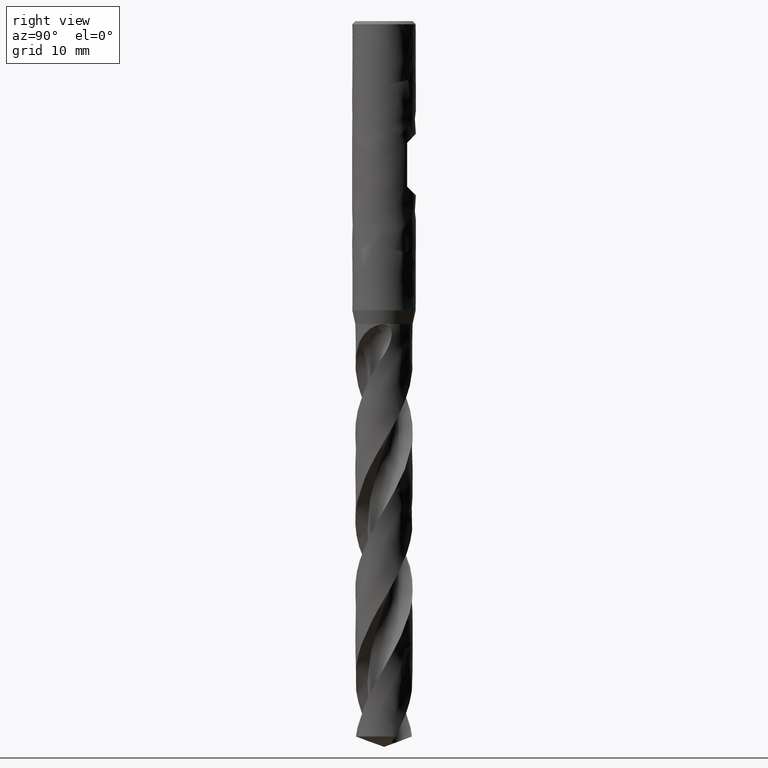
[diagram: clean part render]
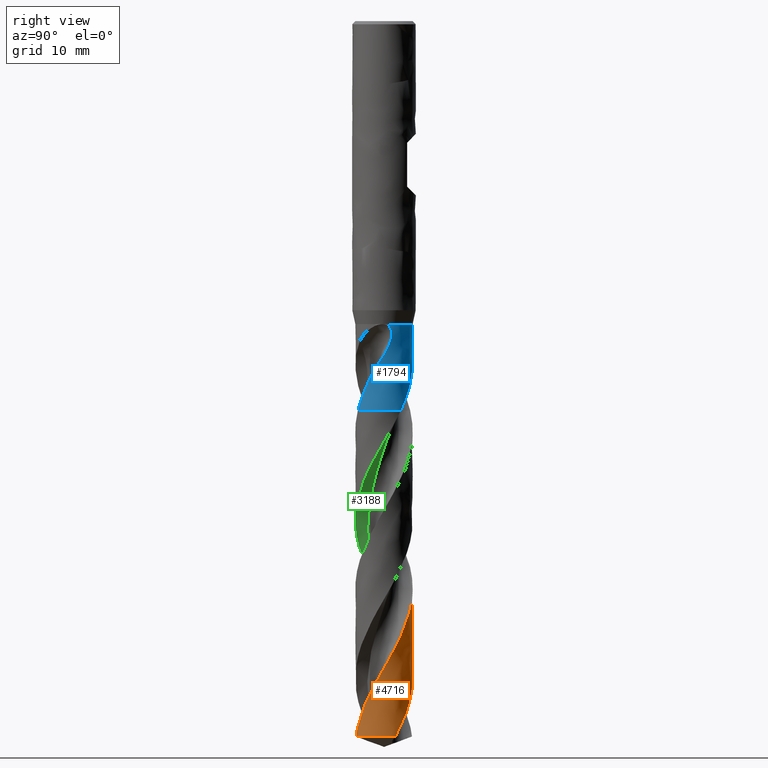
[diagram: same view with three faces highlighted in distinct colors, each labeled with its STEP entity id]
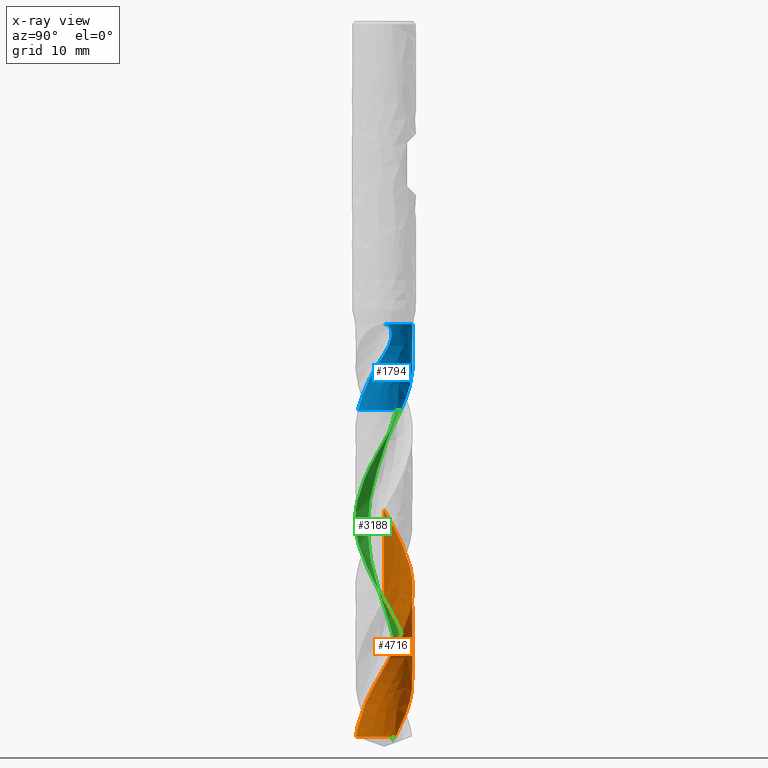
[diagram: x-ray of the same camera — body ghosted, the three highlighted faces saturated]
A machine part, right view with three faces highlighted in distinct colors.
The next image is the same camera in x-ray (body ghosted, the three faces saturated) — at least one of them is partly hidden behind the body in this view.
Their STEP definitions:

[orange] entity #4716 — the highlighted face is a freeform B-spline surface patch.
#3194 = VERTEX_POINT('', #3195);
#3195 = CARTESIAN_POINT('', (-3.6, 4.65859184901154E-15, -72.4805785350525));
#3331 = EDGE_CURVE('', #3332, #3194, #3334, .T.);
#3332 = VERTEX_POINT('', #3333);
#3333 = CARTESIAN_POINT('', (3.28982070162514, 1.46187542258521, -89.6897071566417));
#3334 = B_SPLINE_CURVE_WITH_KNOTS('', 3, (#3335, #3336, #3337, #3338, #3339, #3340, #3341, #3342, #3343, #3344, #3345, #3346, #3347, #3348, #3349, #3350, #3351, #3352, #3353, #3354, #3355, #3356, #3357, #3358, #3359, #3360, #3361, #3362, #3363, #3364, #3365, #3366, #3367, #3368, #3369, #3370, #3371, #3372, #3373, #3374, #3375, #3376, #3377, #3378, #3379, #3380, #3381, #3382, #3383, #3384, #3385, #3386, #3387, #3388, #3389, #3390, #3391, #3392, #3393, #3394, #3395, #3396, #3397, #3398, #3399, #3400, #3401, #3402, #3403, #3404, #3405, #3406, #3407, #3408, #3409, #3410, #3411, #3412, #3413, #3414, #3415, #3416, #3417, #3418, #3419, #3420, #3421, #3422, #3423, #3424, #3425, #3426, #3427, #3428, #3429, #3430, #3431, #3432, #3433, #3434), .UNSPECIFIED., .F., .U., (4, 3, 3, 3, 3, 3, 3, 3, 3, 3, 3, 3, 3, 3, 3, 3, 3, 3, 3, 3, 3, 3, 3, 3, 3, 3, 3, 3, 3, 3, 3, 3, 3, 4), (0., 0.665632612733677, 1.33108974523399, 1.99637424870258, 2.66148829206151, 3.32643329106356, 3.99120990587231, 4.65581804572753, 5.32025686378732, 5.98452473268552, 6.64861933965576, 7.31253775933697, 7.97627622810817, 8.27156709922593, 8.35911956619556, 8.41749881775401, 9.08399465979916, 9.75028885555826, 10.4163888210097, 11.0823008303431, 11.7480300912593, 12.4135808365479, 13.0789563938491, 13.7441592368879, 14.4091910215188, 15.0740526576502, 15.7387444799593, 16.4032661301489, 17.0676165216999, 17.7317938117901, 18.3957953600774, 19.0596176732039, 19.723256336264, 19.8044062277548), .UNSPECIFIED.);
#3335 = CARTESIAN_POINT('', (3.28982070162514, 1.46187542258521, -89.6897071566417));
#3336 = CARTESIAN_POINT('', (3.24529479137237, 1.56207702598124, -89.4968167118948));
#3337 = CARTESIAN_POINT('', (3.1961724718332, 1.66027322443952, -89.3038805365067));
#3338 = CARTESIAN_POINT('', (3.14268189214795, 1.75600413574838, -89.110997172303));
#3339 = CARTESIAN_POINT('', (3.08920541414466, 1.85170980958789, -88.9181646577979));
#3340 = CARTESIAN_POINT('', (3.03133618033816, 1.94499949488074, -88.7252862859962));
#3341 = CARTESIAN_POINT('', (2.96934287337301, 2.03543678367788, -88.5324609374509));
#3342 = CARTESIAN_POINT('', (2.90736564835218, 2.12585061175782, -88.3396856105398));
#3343 = CARTESIAN_POINT('', (2.84123583830036, 2.21345825961125, -88.1468642582839));
#3344 = CARTESIAN_POINT('', (2.77126044367788, 2.29785020253851, -87.9540959841529));
#3345 = CARTESIAN_POINT('', (2.70130297824717, 2.38222052244619, -87.761377101374));
#3346 = CARTESIAN_POINT('', (2.62746724121611, 2.46341855777096, -87.5686123167287));
#3347 = CARTESIAN_POINT('', (2.55009650129656, 2.54106431128279, -87.3759004302343));
#3348 = CARTESIAN_POINT('', (2.47274542580464, 2.61869033046996, -87.1832375230949));
#3349 = CARTESIAN_POINT('', (2.39182232349727, 2.69280479170077, -86.990528968516));
#3350 = CARTESIAN_POINT('', (2.30770419641067, 2.76306014083454, -86.7978730313235));
#3351 = CARTESIAN_POINT('', (2.22360737057906, 2.83329769918817, -86.6052658804436));
#3352 = CARTESIAN_POINT('', (2.13627420835127, 2.89971391431042, -86.412613375325));
#3353 = CARTESIAN_POINT('', (2.04611243929085, 2.96199660461981, -86.2200132009319));
#3354 = CARTESIAN_POINT('', (1.95597352001111, 3.02426351056928, -86.0274618373795));
#3355 = CARTESIAN_POINT('', (1.86296077030072, 3.082431193846, -85.8348653208979));
#3356 = CARTESIAN_POINT('', (1.76750899168005, 3.13622575149338, -85.6423209793114));
#3357 = CARTESIAN_POINT('', (1.67208153124863, 3.19000660393533, -85.449825692125));
#3358 = CARTESIAN_POINT('', (1.57416676080486, 3.23944447819794, -85.2572852262614));
#3359 = CARTESIAN_POINT('', (1.47422217604776, 3.28430646798515, -85.0647970506952));
#3360 = CARTESIAN_POINT('', (1.37430330538578, 3.32915691552146, -84.8723583991654));
#3361 = CARTESIAN_POINT('', (1.27230456087142, 3.36945681131911, -84.6798742587241));
#3362 = CARTESIAN_POINT('', (1.16870141736129, 3.4050164459306, -84.4874427670126));
#3363 = CARTESIAN_POINT('', (1.06512529680563, 3.44056680547228, -84.2950614674794));
#3364 = CARTESIAN_POINT('', (0.959893822178038, 3.47139718441154, -84.1026343594597));
#3365 = CARTESIAN_POINT('', (0.853496591146938, 3.49736237311789, -83.9102601319047));
#3366 = CARTESIAN_POINT('', (0.747127587780238, 3.52332067314279, -83.7179369420985));
#3367 = CARTESIAN_POINT('', (0.639540798658304, 3.54442921462486, -83.5255678917573));
#3368 = CARTESIAN_POINT('', (0.531236684216056, 3.56058809543364, -83.3332517017978));
#3369 = CARTESIAN_POINT('', (0.422961924922533, 3.57674259647945, -83.1409876379314));
#3370 = CARTESIAN_POINT('', (0.313916410927599, 3.58795813124568, -82.9486778633848));
#3371 = CARTESIAN_POINT('', (0.204607934286302, 3.59418079584603, -82.7564207515835));
#3372 = CARTESIAN_POINT('', (0.155977642678041, 3.59694919957274, -82.6708874087181));
#3373 = CARTESIAN_POINT('', (0.107287375015467, 3.59873064139656, -82.585350508718));
#3374 = CARTESIAN_POINT('', (0.0585823256957067, 3.59952331720689, -82.4998185737542));
#3375 = CARTESIAN_POINT('', (0.0441414890871069, 3.59975834215853, -82.4744587247266));
#3376 = CARTESIAN_POINT('', (0.029699075101667, 3.59990646592853, -82.4490988196098));
#3377 = CARTESIAN_POINT('', (0.0152562654856505, 3.59996767296089, -82.4237390789668));
#3378 = CARTESIAN_POINT('', (0.00562592101943889, 3.60000848529735, -82.4068294163417));
#3379 = CARTESIAN_POINT('', (-0.00400464713186372, 3.6000106541018, -82.3899197436832));
#3380 = CARTESIAN_POINT('', (-0.0136350944009257, 3.5999741782686, -82.3730101296961));
#3381 = CARTESIAN_POINT('', (-0.123582599559309, 3.59955774622278, -82.1799588809714));
#3382 = CARTESIAN_POINT('', (-0.233545684405783, 3.59409902718923, -81.986861736876));
#3383 = CARTESIAN_POINT('', (-0.343006343437767, 3.58362200132238, -81.7938176797449));
#3384 = CARTESIAN_POINT('', (-0.452433885480911, 3.57314814524779, -81.600832027505));
#3385 = CARTESIAN_POINT('', (-0.561415069117867, 3.55765371655051, -81.4078001413356));
#3386 = CARTESIAN_POINT('', (-0.669437718731668, 3.53720979597472, -81.2148216350945));
#3387 = CARTESIAN_POINT('', (-0.777428878843387, 3.51677183497205, -81.0218993836953));
#3388 = CARTESIAN_POINT('', (-0.884516224360368, 3.49137703179284, -80.8289307377559));
#3389 = CARTESIAN_POINT('', (-0.990196990541439, 3.46114286326392, -80.636015557664));
#3390 = CARTESIAN_POINT('', (-1.09584793635379, 3.43091722603246, -80.4431548132278));
#3391 = CARTESIAN_POINT('', (-1.2001459440435, 3.39583982698274, -80.2502477281386));
#3392 = CARTESIAN_POINT('', (-1.30260114270266, 3.35607363790334, -80.0573939993299));
#3393 = CARTESIAN_POINT('', (-1.40502822424556, 3.31631836198966, -79.8645931960027));
#3394 = CARTESIAN_POINT('', (-1.50566516661828, 3.27185679512507, -79.6717462502764));
#3395 = CARTESIAN_POINT('', (-1.60403865441535, 3.22289621228196, -79.4789524303903));
#3396 = CARTESIAN_POINT('', (-1.70238576331344, 3.17394875824315, -79.2862103082614));
#3397 = CARTESIAN_POINT('', (-1.79852092598326, 3.12047963881212, -79.0934223007526));
#3398 = CARTESIAN_POINT('', (-1.89199122825879, 3.06273883839152, -78.9006871579074));
#3399 = CARTESIAN_POINT('', (-1.98543692703977, 3.00501323665364, -78.7080027473047));
#3400 = CARTESIAN_POINT('', (-2.07626760547982, 2.94298825595173, -78.515272665843));
#3401 = CARTESIAN_POINT('', (-2.16405475358072, 2.87695447018279, -78.3225952629871));
#3402 = CARTESIAN_POINT('', (-2.25181911441151, 2.81093782507447, -78.1299678741948));
#3403 = CARTESIAN_POINT('', (-2.33658730924063, 2.74088001411969, -77.9372948694406));
#3404 = CARTESIAN_POINT('', (-2.41795932913975, 2.66710942456924, -77.7446745541278));
#3405 = CARTESIAN_POINT('', (-2.49931042404087, 2.59335780529188, -77.5521037715624));
#3406 = CARTESIAN_POINT('', (-2.57730922354433, 2.51585715430132, -77.3594871718906));
#3407 = CARTESIAN_POINT('', (-2.65158818040721, 2.43497025064471, -77.1669235365134));
#3408 = CARTESIAN_POINT('', (-2.72584813298587, 2.3541040419167, -76.9744091685762));
#3409 = CARTESIAN_POINT('', (-2.79642787799208, 2.26981226908601, -76.7818486754142));
#3410 = CARTESIAN_POINT('', (-2.86299537118759, 2.18248883263088, -76.5893413965165));
#3411 = CARTESIAN_POINT('', (-2.9295458622283, 2.09518769965319, -76.3968832863406));
#3412 = CARTESIAN_POINT('', (-2.99211953052841, 2.00481267809792, -76.2043789404011));
#3413 = CARTESIAN_POINT('', (-3.05042203427357, 1.91178592232977, -76.011927854102));
#3414 = CARTESIAN_POINT('', (-3.10870961161177, 1.81878298295245, -75.8195260384697));
#3415 = CARTESIAN_POINT('', (-3.16275742730818, 1.72308303019382, -75.6270780648563));
#3416 = CARTESIAN_POINT('', (-3.21231090635726, 1.62513342249129, -75.4346832257143));
#3417 = CARTESIAN_POINT('', (-3.26185161462399, 1.52720905808437, -75.2423379700257));
#3418 = CARTESIAN_POINT('', (-3.30692534885827, 1.42698664120813, -75.0499467555021));
#3419 = CARTESIAN_POINT('', (-3.34731927666872, 1.32493534183449, -74.8576084514694));
#3420 = CARTESIAN_POINT('', (-3.38770267953931, 1.22291063268978, -74.6653202626195));
#3421 = CARTESIAN_POINT('', (-3.42342939660075, 1.11900567530987, -74.4729863520106));
#3422 = CARTESIAN_POINT('', (-3.4543301573936, 1.0137076322694, -74.2807051173856));
#3423 = CARTESIAN_POINT('', (-3.48522274182226, 0.908437451169121, -74.0884747605178));
#3424 = CARTESIAN_POINT('', (-3.51130792929368, 0.801720322480989, -73.8961988566938));
#3425 = CARTESIAN_POINT('', (-3.53246157313033, 0.69405708292471, -73.7039754889578));
#3426 = CARTESIAN_POINT('', (-3.55360950692494, 0.586422905104978, -73.5118040084294));
#3427 = CARTESIAN_POINT('', (-3.56983956335089, 0.477787146357589, -73.3195869761843));
#3428 = CARTESIAN_POINT('', (-3.58107389109698, 0.368659445158274, -73.1274225570578));
#3429 = CARTESIAN_POINT('', (-3.59230511080498, 0.259561934733142, -72.9353113012668));
#3430 = CARTESIAN_POINT('', (-3.59854917147834, 0.149916626245058, -72.7431542625293));
#3431 = CARTESIAN_POINT('', (-3.59977513017991, 0.0402369499343416, -72.5510501050826));
#3432 = CARTESIAN_POINT('', (-3.5999250406977, 0.0268252933706406, -72.5275595636186));
#3433 = CARTESIAN_POINT('', (-3.6, 0.0134126616408752, -72.5040689810024));
#3434 = CARTESIAN_POINT('', (-3.6, 4.04146397243279E-15, -72.4805785350525));
#3621 = VERTEX_POINT('', #3622);
#3622 = CARTESIAN_POINT('', (-3.6, 3.97359197793741E-15, -61.2936816836329));
#3686 = EDGE_CURVE('', #3621, #3194, #3687, .T.);
#3687 = LINE('', #3688, #3689);
#3688 = CARTESIAN_POINT('', (-3.6, 3.97359197793741E-15, -61.2936816836329));
#3689 = VECTOR('', #3690, 11.1868968514196);
#3690 = DIRECTION('', (0., 6.8499987107413E-16, -11.1868968514196));
#3784 = VERTEX_POINT('', #3785);
#3785 = CARTESIAN_POINT('', (0.776740994344527, -3.51520602919724, -89.6897071566417));
#3903 = EDGE_CURVE('', #3904, #3784, #3906, .T.);
#3904 = VERTEX_POINT('', #3905);
#3905 = CARTESIAN_POINT('', (1.37127207756239, -3.32860524684104, -88.5880481687148));
#3906 = B_SPLINE_CURVE_WITH_KNOTS('', 3, (#3907, #3908, #3909, #3910, #3911, #3912, #3913), .UNSPECIFIED., .F., .U., (4, 3, 4), (0., 0.664219564882797, 1.26596509337402), .UNSPECIFIED.);
#3907 = CARTESIAN_POINT('', (1.3712720775624, -3.32860524684103, -88.5880481687148));
#3908 = CARTESIAN_POINT('', (1.27037792446686, -3.37017020413374, -88.780696999533));
#3909 = CARTESIAN_POINT('', (1.16757409930203, -3.40715058632277, -88.9733986055905));
#3910 = CARTESIAN_POINT('', (1.06333490702126, -3.43937768724365, -89.1660549124639));
#3911 = CARTESIAN_POINT('', (0.968900067753077, -3.46857362620821, -89.3405906794391));
#3912 = CARTESIAN_POINT('', (0.873247928918814, -3.49388127847147, -89.5151656364844));
#3913 = CARTESIAN_POINT('', (0.776740994344525, -3.51520602919724, -89.6897071566417));
#4504 = EDGE_CURVE('', #3332, #3784, #4505, .T.);
#4505 = CIRCLE('', #4506, 3.60000000000001);
#4506 = AXIS2_PLACEMENT_3D('', #4507, #4508, #4509);
#4507 = CARTESIAN_POINT('', (3.36282539280626E-31, 5.49191063929223E-15, -89.6897071566417));
#4508 = DIRECTION('', (3.74939945665464E-33, 6.12323399573677E-17, -1.));
#4509 = DIRECTION('', (-1., 6.12323399573677E-17, 0.));
#4716 = ADVANCED_FACE('', (#4717), #4880, .T.);
#4717 = FACE_OUTER_BOUND('', #4718, .T.);
#4718 = EDGE_LOOP('', (#4719, #4720, #4721, #4722, #4723));
#4719 = ORIENTED_EDGE('', *, *, #3903, .T.);
#4720 = ORIENTED_EDGE('', *, *, #4504, .F.);
#4721 = ORIENTED_EDGE('', *, *, #3331, .T.);
#4722 = ORIENTED_EDGE('', *, *, #3686, .F.);
#4723 = ORIENTED_EDGE('', *, *, #4724, .F.);
#4724 = EDGE_CURVE('', #3904, #3621, #4725, .T.);
#4725 = B_SPLINE_CURVE_WITH_KNOTS('', 3, (#4726, #4727, #4728, #4729, #4730, #4731, #4732, #4733, #4734, #4735, #4736, #4737, #4738, #4739, #4740, #4741, #4742, #4743, #4744, #4745, #4746, #4747, #4748, #4749, #4750, #4751, #4752, #4753, #4754, #4755, #4756, #4757, #4758, #4759, #4760, #4761, #4762, #4763, #4764, #4765, #4766, #4767, #4768, #4769, #4770, #4771, #4772, #4773, #4774, #4775, #4776, #4777, #4778, #4779, #4780, #4781, #4782, #4783, #4784, #4785, #4786, #4787, #4788, #4789, #4790, #4791, #4792, #4793, #4794, #4795, #4796, #4797, #4798, #4799, #4800, #4801, #4802, #4803, #4804, #4805, #4806, #4807, #4808, #4809, #4810, #4811, #4812, #4813, #4814, #4815, #4816, #4817, #4818, #4819, #4820, #4821, #4822, #4823, #4824, #4825, #4826, #4827, #4828, #4829, #4830, #4831, #4832, #4833, #4834, #4835, #4836, #4837, #4838, #4839, #4840, #4841, #4842, #4843, #4844, #4845, #4846, #4847, #4848, #4849, #4850, #4851, #4852, #4853, #4854, #4855, #4856, #4857, #4858, #4859, #4860, #4861, #4862, #4863, #4864, #4865, #4866, #4867, #4868, #4869, #4870, #4871, #4872, #4873, #4874, #4875, #4876, #4877, #4878, #4879), .UNSPECIFIED., .F., .U., (4, 3, 3, 3, 3, 3, 3, 3, 3, 3, 3, 3, 3, 3, 3, 3, 3, 3, 3, 3, 3, 3, 3, 3, 3, 3, 3, 3, 3, 3, 3, 3, 3, 3, 3, 3, 3, 3, 3, 3, 3, 3, 3, 3, 3, 3, 3, 3, 3, 3, 3, 4), (0., 0.6656815624971, 1.33118870712636, 1.99652443090491, 2.66169092156579, 3.32668957381325, 3.99152101770369, 4.65618515616166, 5.32068138094381, 5.98500841697316, 6.64916424664756, 7.31314606516072, 7.97695022187625, 8.41969373562618, 8.5510035733559, 8.60937769788482, 9.27587519851266, 9.94217226548503, 10.6082762217459, 11.2741932153984, 11.9399283349818, 12.6054856989098, 13.2708685233724, 13.9360791719336, 14.6011191999054, 15.2659895323833, 15.9306904509819, 16.5952215238077, 17.2595815887589, 17.9237687243662, 18.5877802074938, 19.2516124571028, 19.9152609943748, 20.0028132885105, 20.0611938356281, 20.7276966310445, 21.3939966119128, 22.06010114647, 22.7260164202093, 23.3917475531946, 24.0572986909429, 24.7226730732548, 25.3878730842917, 26.0529002949386, 26.7177555909978, 27.3824391785101, 28.0469505467179, 28.7112884503521, 29.3754508789931, 30.0394350127713, 30.7032371635522, 31.4143981049008), .UNSPECIFIED.);
#4726 = CARTESIAN_POINT('', (1.37127207756239, -3.32860524684104, -88.5880481687148));
#4727 = CARTESIAN_POINT('', (1.47238830633731, -3.28694880192645, -88.394975303216));
#4728 = CARTESIAN_POINT('', (1.57163931148022, -3.24066574784378, -88.2018595261846));
#4729 = CARTESIAN_POINT('', (1.66856372183497, -3.18996788481894, -88.008799256117));
#4730 = CARTESIAN_POINT('', (1.76546273664034, -3.13928330534238, -87.8157895705368));
#4731 = CARTESIAN_POINT('', (1.86008391628891, -3.08416131472012, -87.6227373095454));
#4732 = CARTESIAN_POINT('', (1.95198605936883, -3.02485543853417, -87.4297401760385));
#4733 = CARTESIAN_POINT('', (2.04386453036096, -2.96556483831306, -87.2367927545942));
#4734 = CARTESIAN_POINT('', (2.13307161369139, -2.9020626040214, -87.0438031675251));
#4735 = CARTESIAN_POINT('', (2.21918986970409, -2.83464218592095, -86.8508682838132));
#4736 = CARTESIAN_POINT('', (2.30528622089426, -2.76723891670811, -86.657982474532));
#4737 = CARTESIAN_POINT('', (2.38833971291767, -2.69588465091572, -86.4650548297606));
#4738 = CARTESIAN_POINT('', (2.46796055714618, -2.62091027858084, -86.2721816007519));
#4739 = CARTESIAN_POINT('', (2.5475613110118, -2.54595482418587, -86.0793570385615));
#4740 = CARTESIAN_POINT('', (2.6237726667175, -2.46734198754524, -85.8864906973805));
#4741 = CARTESIAN_POINT('', (2.6962365713618, -2.3854367212842, -85.6936788154182));
#4742 = CARTESIAN_POINT('', (2.7686822555625, -2.30355204941829, -85.5009154143933));
#4743 = CARTESIAN_POINT('', (2.83741970827539, -2.21833446844486, -85.30810985236));
#4744 = CARTESIAN_POINT('', (2.90212657149914, -2.13017871621106, -85.1153592606088));
#4745 = CARTESIAN_POINT('', (2.96681715118241, -2.04204514845182, -84.9226571747178));
#4746 = CARTESIAN_POINT('', (3.02751137730541, -1.95093109901767, -84.7299123309411));
#4747 = CARTESIAN_POINT('', (3.08392526424099, -1.85725737704179, -84.537222948918));
#4748 = CARTESIAN_POINT('', (3.14032489937243, -1.76360731979832, -84.3445822458901));
#4749 = CARTESIAN_POINT('', (3.19247375314595, -1.66735342102796, -84.1518985419808));
#4750 = CARTESIAN_POINT('', (3.24012766064621, -1.5689400060918, -83.9592704095901));
#4751 = CARTESIAN_POINT('', (3.2877694348869, -1.47055164839798, -83.7666913226451));
#4752 = CARTESIAN_POINT('', (3.33094167443079, -1.36995707038323, -83.5740693514047));
#4753 = CARTESIAN_POINT('', (3.36944147467475, -1.26762145325082, -83.3815027417385));
#4754 = CARTESIAN_POINT('', (3.40793135298252, -1.16531220943613, -83.1889857591768));
#4755 = CARTESIAN_POINT('', (3.44177019847305, -1.0612122022776, -82.9964262264265));
#4756 = CARTESIAN_POINT('', (3.47079791527886, -0.955804285037569, -82.8039216724105));
#4757 = CARTESIAN_POINT('', (3.49981802672087, -0.850423985042259, -82.6114675552642));
#4758 = CARTESIAN_POINT('', (3.52404420498466, -0.743682996798498, -82.418971281281));
#4759 = CARTESIAN_POINT('', (3.54336065960943, -0.636078010886189, -82.2265295932576));
#4760 = CARTESIAN_POINT('', (3.56267194572513, -0.528501816869529, -82.0341393969095));
#4761 = CARTESIAN_POINT('', (3.57708610918324, -0.420006350127875, -81.8417073216519));
#4762 = CARTESIAN_POINT('', (3.58653290913927, -0.311097559718134, -81.6493296091083));
#4763 = CARTESIAN_POINT('', (3.59283372748141, -0.238457670292243, -81.5210176912677));
#4764 = CARTESIAN_POINT('', (3.596927865448, -0.165613026091273, -81.3926942101137));
#4765 = CARTESIAN_POINT('', (3.5988059198537, -0.0927143528592429, -81.2643880977878));
#4766 = CARTESIAN_POINT('', (3.59936291732876, -0.0710939052286613, -81.2263347909273));
#4767 = CARTESIAN_POINT('', (3.59972509056645, -0.0494677902593532, -81.1882813531796));
#4768 = CARTESIAN_POINT('', (3.59989235050482, -0.027839985217646, -81.1502285183556));
#4769 = CARTESIAN_POINT('', (3.59996670633862, -0.0182252891170345, -81.1333120332155));
#4770 = CARTESIAN_POINT('', (3.60000254379565, -0.00861019800070915, -81.1163955594226));
#4771 = CARTESIAN_POINT('', (3.5999998597361, 0.0010049378553843, -81.0994791610277));
#4772 = CARTESIAN_POINT('', (3.59996921398343, 0.110787552464159, -80.9063330138122));
#4773 = CARTESIAN_POINT('', (3.59491160314998, 0.22060761987481, -80.7131437097012));
#4774 = CARTESIAN_POINT('', (3.58484764588359, 0.329950535388591, -80.5200103330291));
#4775 = CARTESIAN_POINT('', (3.57478671511878, 0.439260568558125, -80.3269350367379));
#4776 = CARTESIAN_POINT('', (3.55971749234156, 0.548147935500554, -80.1338161826081));
#4777 = CARTESIAN_POINT('', (3.53970738099463, 0.656103388904784, -79.9407535211702));
#4778 = CARTESIAN_POINT('', (3.51970306911317, 0.764027553931131, -79.7477468144554));
#4779 = CARTESIAN_POINT('', (3.49475090199361, 0.871073342815456, -79.554696526637));
#4780 = CARTESIAN_POINT('', (3.46496454341685, 0.976739838884522, -79.3617023526871));
#4781 = CARTESIAN_POINT('', (3.4351865452998, 1.08237667639423, -79.1687623485013));
#4782 = CARTESIAN_POINT('', (3.40056226624274, 1.18668738735242, -78.9757789989417));
#4783 = CARTESIAN_POINT('', (3.36125093069992, 1.28918275697007, -78.7828514635018));
#4784 = CARTESIAN_POINT('', (3.32195033179941, 1.39165013323401, -78.5899766200885));
#4785 = CARTESIAN_POINT('', (3.27794528566831, 1.49235505354244, -78.3970587917847));
#4786 = CARTESIAN_POINT('', (3.22943952634018, 1.59082379467738, -78.2041963956952));
#4787 = CARTESIAN_POINT('', (3.18094671836881, 1.68926624401083, -78.0113854951339));
#4788 = CARTESIAN_POINT('', (3.12793044182545, 1.78552469293955, -77.8185319449127));
#4789 = CARTESIAN_POINT('', (3.07063734737965, 1.87914509308816, -77.6257335174403));
#4790 = CARTESIAN_POINT('', (3.01335927779365, 1.97274094170225, -77.4329856505001));
#4791 = CARTESIAN_POINT('', (2.95177652630915, 2.06374929120434, -77.2401952778825));
#4792 = CARTESIAN_POINT('', (2.88617632998842, 2.15174027062158, -77.0474599616397));
#4793 = CARTESIAN_POINT('', (2.82059310851661, 2.23970848130234, -76.8547745180051));
#4794 = CARTESIAN_POINT('', (2.75096024683329, 2.32470690021767, -76.6620463436449));
#4795 = CARTESIAN_POINT('', (2.67760232594795, 2.40633451209057, -76.4693735805438));
#4796 = CARTESIAN_POINT('', (2.60426322071404, 2.48794118721017, -76.2767502362854));
#4797 = CARTESIAN_POINT('', (2.52716367104267, 2.56622035795155, -76.0840836418255));
#4798 = CARTESIAN_POINT('', (2.44666224359504, 2.64080364013807, -75.8914729444823));
#4799 = CARTESIAN_POINT('', (2.36618135736136, 2.71536789121913, -75.6989113948085));
#4800 = CARTESIAN_POINT('', (2.28226040435931, 2.78627516065854, -75.506306275779));
#4801 = CARTESIAN_POINT('', (2.19528936940093, 2.85319199925195, -75.3137572513931));
#4802 = CARTESIAN_POINT('', (2.10834049530565, 2.92009178693984, -75.121257289923));
#4803 = CARTESIAN_POINT('', (2.01830016369264, 2.98303619243395, -74.9287137857392));
#4804 = CARTESIAN_POINT('', (1.92558734109226, 3.04172868478194, -74.7362262606044));
#4805 = CARTESIAN_POINT('', (1.83289820866677, 3.10040617990118, -74.5437879202857));
#4806 = CARTESIAN_POINT('', (1.73749161805184, 3.15486322483328, -74.3513062923518));
#4807 = CARTESIAN_POINT('', (1.63981266340886, 3.20484234072817, -74.1588803369245));
#4808 = CARTESIAN_POINT('', (1.54215884509298, 3.25480859518929, -73.9665038996537));
#4809 = CARTESIAN_POINT('', (1.44218398589701, 3.30032468207918, -73.7740845241999));
#4810 = CARTESIAN_POINT('', (1.34035589333535, 3.34117435630069, -73.581720462809));
#4811 = CARTESIAN_POINT('', (1.2385543060773, 3.38201339757218, -73.3894064727464));
#4812 = CARTESIAN_POINT('', (1.1348474286248, 3.41820968914207, -73.1970498370168));
#4813 = CARTESIAN_POINT('', (1.02972168339866, 3.44959030244736, -73.0047482612738));
#4814 = CARTESIAN_POINT('', (0.924623739972418, 3.48096261676244, -72.8124975420542));
#4815 = CARTESIAN_POINT('', (0.818052407963744, 3.507538291424, -72.6202042440171));
#4816 = CARTESIAN_POINT('', (0.710507846507717, 3.52918951036234, -72.4279660301311));
#4817 = CARTESIAN_POINT('', (0.602992314052913, 3.55083488508827, -72.2357797062084));
#4818 = CARTESIAN_POINT('', (0.494448113189985, 3.56756976470209, -72.0435504942839));
#4819 = CARTESIAN_POINT('', (0.385383609813106, 3.5793127096258, -71.8513767905243));
#4820 = CARTESIAN_POINT('', (0.276349289505535, 3.59105240474678, -71.6592562698999));
#4821 = CARTESIAN_POINT('', (0.166739789143288, 3.59780891132485, -71.4670923716663));
#4822 = CARTESIAN_POINT('', (0.0570671104668929, 3.59954765837399, -71.274984385882));
#4823 = CARTESIAN_POINT('', (0.0425984661727306, 3.59977704378588, -71.2496404064522));
#4824 = CARTESIAN_POINT('', (0.0281281882213941, 3.59991919489818, -71.224296419926));
#4825 = CARTESIAN_POINT('', (0.0136574676071797, 3.59997409345937, -71.1989526473227));
#4826 = CARTESIAN_POINT('', (0.00400827914235189, 3.60001070024471, -71.1820532236673));
#4827 = CARTESIAN_POINT('', (-0.00564115402204201, 3.6000085122844, -71.1651538111619));
#4828 = CARTESIAN_POINT('', (-0.0152904783047393, 3.59996752780817, -71.1482544751059));
#4829 = CARTESIAN_POINT('', (-0.12545220041643, 3.59949962763714, -70.9553228347208));
#4830 = CARTESIAN_POINT('', (-0.235631715400603, 3.59396972937834, -70.7623474075915));
#4831 = CARTESIAN_POINT('', (-0.345308607697656, 3.58340089376702, -70.5694284587535));
#4832 = CARTESIAN_POINT('', (-0.454952125687045, 3.57283527421666, -70.3765682144996));
#4833 = CARTESIAN_POINT('', (-0.564148699151183, 3.55722847598292, -70.1836638319697));
#4834 = CARTESIAN_POINT('', (-0.672383416357739, 3.536651034723, -69.9908161665194));
#4835 = CARTESIAN_POINT('', (-0.780586384987356, 3.51607962946053, -69.7980250692304));
#4836 = CARTESIAN_POINT('', (-0.887882232040636, 3.49053019242922, -69.6051898079747));
#4837 = CARTESIAN_POINT('', (-0.993764773690351, 3.46012016764914, -69.412411204143));
#4838 = CARTESIAN_POINT('', (-1.09961723084822, 3.42971878329388, -69.2196873746513));
#4839 = CARTESIAN_POINT('', (-1.20411060228999, 3.39444420181515, -69.0269195833789));
#4840 = CARTESIAN_POINT('', (-1.30675097183548, 3.35446000089539, -68.8342081941789));
#4841 = CARTESIAN_POINT('', (-1.4093629589789, 3.3144868565187, -68.6415500940712));
#4842 = CARTESIAN_POINT('', (-1.51017566809285, 3.26978612615005, -68.4488483475962));
#4843 = CARTESIAN_POINT('', (-1.60871132971323, 3.22056638771076, -68.2562026716754));
#4844 = CARTESIAN_POINT('', (-1.70722035002319, 3.17135995692383, -68.0636090818031));
#4845 = CARTESIAN_POINT('', (-1.8035051249663, 3.11761116234978, -67.8709721425215));
#4846 = CARTESIAN_POINT('', (-1.89710823398351, 3.0595719224349, -67.6783910027763));
#4847 = CARTESIAN_POINT('', (-1.99068648411695, 3.0015480964388, -67.4858610082573));
#4848 = CARTESIAN_POINT('', (-2.08163408529521, 2.93920533652322, -67.2932877937425));
#4849 = CARTESIAN_POINT('', (-2.16951843010304, 2.87283653928365, -67.1007703224277));
#4850 = CARTESIAN_POINT('', (-2.25737974350831, 2.8064851349767, -66.9083033031859));
#4851 = CARTESIAN_POINT('', (-2.34222579586679, 2.73607479915623, -66.7157928658164));
#4852 = CARTESIAN_POINT('', (-2.42365338324199, 2.66193618967467, -66.5233384885188));
#4853 = CARTESIAN_POINT('', (-2.50505981800351, 2.58781683933384, -66.3309341054949));
#4854 = CARTESIAN_POINT('', (-2.58309157637112, 2.50993295646078, -66.1384858554585));
#4855 = CARTESIAN_POINT('', (-2.6573785851922, 2.42864963610685, -65.9460940820508));
#4856 = CARTESIAN_POINT('', (-2.73164639025696, 2.34738732810894, -65.7537520433785));
#4857 = CARTESIAN_POINT('', (-2.80220890369323, 2.26268631103219, -65.5613658753854));
#4858 = CARTESIAN_POINT('', (-2.86873160861809, 2.17494343781981, -65.3690363473852));
#4859 = CARTESIAN_POINT('', (-2.9352371330872, 2.08722322548018, -65.1767564912819));
#4860 = CARTESIAN_POINT('', (-2.99773838025629, 1.99641859517628, -64.9844325372741));
#4861 = CARTESIAN_POINT('', (-3.0559385282544, 1.90295552011347, -64.792165119666));
#4862 = CARTESIAN_POINT('', (-3.11412359661283, 1.80951666130345, -64.5999475184841));
#4863 = CARTESIAN_POINT('', (-3.16803934617164, 1.71337321965284, -64.4076860469211));
#4864 = CARTESIAN_POINT('', (-3.21742885709925, 1.61497725974858, -64.215480844066));
#4865 = CARTESIAN_POINT('', (-3.26680547534982, 1.5166069852036, -64.0233258146093));
#4866 = CARTESIAN_POINT('', (-3.31168373770985, 1.41593444280057, -63.8311272225343));
#4867 = CARTESIAN_POINT('', (-3.35184881725812, 1.31343424130994, -63.6389845886169));
#4868 = CARTESIAN_POINT('', (-3.39200328779701, 1.2109611137256, -63.4468927063233));
#4869 = CARTESIAN_POINT('', (-3.42746817895675, 1.10660733010308, -63.2547575148001));
#4870 = CARTESIAN_POINT('', (-3.45807280469209, 1.00086586386452, -63.0626780681496));
#4871 = CARTESIAN_POINT('', (-3.4886692145945, 0.895152783995642, -62.8706501853592));
#4872 = CARTESIAN_POINT('', (-3.51442419873215, 0.787996673083936, -62.678579038466));
#4873 = CARTESIAN_POINT('', (-3.53521294927334, 0.679903966226666, -62.4865636799697));
#4874 = CARTESIAN_POINT('', (-3.55599600208933, 0.571840885129676, -62.2946009485299));
#4875 = CARTESIAN_POINT('', (-3.57182649298676, 0.46278495459888, -62.1025946661791));
#4876 = CARTESIAN_POINT('', (-3.58262668793128, 0.353250640373099, -61.9106445558936));
#4877 = CARTESIAN_POINT('', (-3.59419741995506, 0.235901629190873, -61.7049998152702));
#4878 = CARTESIAN_POINT('', (-3.6, 0.117943139292114, -61.4993120498364));
#4879 = CARTESIAN_POINT('', (-3.6, 3.41848046562483E-15, -61.2936816836329));
#4880 = (
   BOUNDED_SURFACE ()
   B_SPLINE_SURFACE (2, 1, ((#4881, #4882), (#4883, #4884), (#4885, #4886), (#4887, #4888), (#4889, #4890), (#4891, #4892), (#4893, #4894)), .UNSPECIFIED., .F., .F., .U.)
   B_SPLINE_SURFACE_WITH_KNOTS ((3, 2, 2, 3), (2, 2), (0., 5.65486677646163, 11.3097335529233, 16.1293451681704), (0.450644489299256, 1.), .UNSPECIFIED.)
   GEOMETRIC_REPRESENTATION_ITEM ()
   RATIONAL_B_SPLINE_SURFACE (((1., 1.), (0.707106781186548, 0.707106781186548), (1., 1.), (0.707106781186548, 0.707106781186548), (1., 1.), (0.750368732770796, 0.750368732770796), (0.92625615683057, 0.92625615683057)))
   REPRESENTATION_ITEM ('')
   SURFACE ()
);
#4881 = CARTESIAN_POINT('', (-3.6, 3.97359197793741E-15, -61.2936816836329));
#4882 = CARTESIAN_POINT('', (-3.6, 5.71234706313876E-15, -89.6897071566417));
#4883 = CARTESIAN_POINT('', (-3.6, 3.6, -61.2936816836329));
#4884 = CARTESIAN_POINT('', (-3.6, 3.60000000000001, -89.6897071566417));
#4885 = CARTESIAN_POINT('', (2.46519032881566E-31, 3.6, -61.2936816836329));
#4886 = CARTESIAN_POINT('', (3.20474742746036E-31, 3.60000000000001, -89.6897071566417));
#4887 = CARTESIAN_POINT('', (3.6, 3.6, -61.2936816836329));
#4888 = CARTESIAN_POINT('', (3.6, 3.60000000000001, -89.6897071566417));
#4889 = CARTESIAN_POINT('', (3.6, 3.97359197793741E-15, -61.2936816836329));
#4890 = CARTESIAN_POINT('', (3.6, 5.71234706313876E-15, -89.6897071566417));
#4891 = CARTESIAN_POINT('', (3.6, -2.89136179670264, -61.2936816836329));
#4892 = CARTESIAN_POINT('', (3.6, -2.89136179670264, -89.6897071566417));
#4893 = CARTESIAN_POINT('', (0.776740994344524, -3.51520602919724, -61.2936816836329));
#4894 = CARTESIAN_POINT('', (0.776740994344524, -3.51520602919724, -89.6897071566417));

[blue] entity #1794 — the highlighted face is a freeform B-spline surface patch.
#383 = VERTEX_POINT('', #384);
#384 = CARTESIAN_POINT('', (3.59971137676077, 0.0455851293631343, -38.));
#397 = EDGE_CURVE('', #398, #383, #400, .T.);
#398 = VERTEX_POINT('', #399);
#399 = CARTESIAN_POINT('', (-3.57980735671333, 0.380761459211877, -38.));
#400 = CIRCLE('', #401, 3.6);
#401 = AXIS2_PLACEMENT_3D('', #402, #403, #404);
#402 = CARTESIAN_POINT('', (1.42477179352876E-31, 2.32682891837997E-15, -38.));
#403 = DIRECTION('', (3.74939945665464E-33, 6.12323399573677E-17, -1.));
#404 = DIRECTION('', (-1., 6.12323399573677E-17, 0.));
#505 = VERTEX_POINT('', #506);
#506 = CARTESIAN_POINT('', (2.91789542748924, 2.10852703901026, -48.8));
#515 = VERTEX_POINT('', #516);
#516 = CARTESIAN_POINT('', (-1.94873892659861, 3.02694839664626, -40.125873315949));
#536 = EDGE_CURVE('', #515, #505, #537, .T.);
#537 = B_SPLINE_CURVE_WITH_KNOTS('', 3, (#538, #539, #540, #541, #542, #543, #544, #545, #546, #547, #548, #549, #550, #551, #552, #553, #554, #555, #556, #557, #558, #559, #560, #561, #562, #563, #564, #565, #566, #567, #568, #569, #570, #571, #572, #573, #574, #575, #576, #577, #578, #579, #580, #581, #582, #583, #584, #585, #586, #587, #588, #589, #590, #591, #592, #593, #594, #595, #596, #597, #598, #599, #600, #601, #602, #603, #604, #605, #606, #607, #608, #609, #610, #611, #612, #613, #614, #615, #616, #617, #618, #619, #620, #621, #622, #623, #624, #625, #626, #627, #628, #629, #630, #631, #632, #633, #634, #635, #636, #637, #638, #639, #640, #641, #642, #643), .UNSPECIFIED., .F., .U., (4, 3, 3, 3, 3, 3, 3, 3, 3, 3, 3, 3, 3, 3, 3, 3, 3, 3, 3, 3, 3, 3, 3, 3, 3, 3, 3, 3, 3, 3, 3, 3, 3, 3, 3, 4), (0., 0.294429320826078, 0.588893595152446, 0.883396101602892, 1.17795075833466, 1.47256064367789, 1.76722805722386, 2.06196110860667, 2.35675984470299, 2.65163060790709, 2.94658253445559, 3.14337894541536, 3.43844194245635, 3.47736373986119, 3.92158912618467, 4.21753253618561, 4.51354239144376, 4.71077338722407, 4.90796215011067, 5.10508869218567, 5.30219721999782, 5.43359971839255, 5.56501516801462, 6.00875909740718, 6.20586405478229, 6.64942163702758, 7.09297382233863, 7.53647966268235, 7.73355603013399, 8.02918022930769, 8.32481313678244, 8.52188223464078, 8.96527273025371, 9.26084599905584, 9.92575654581832, 10.2688327684211), .UNSPECIFIED.);
#538 = CARTESIAN_POINT('', (-1.94873892659861, 3.02694839664626, -40.125873315949));
#539 = CARTESIAN_POINT('', (-1.89552345372821, 3.06120833434285, -40.200882912378));
#540 = CARTESIAN_POINT('', (-1.84171213516765, 3.09386606101844, -40.2762208715063));
#541 = CARTESIAN_POINT('', (-1.78742858992434, 3.12491584461423, -40.3518599956069));
#542 = CARTESIAN_POINT('', (-1.73313860035032, 3.1559693143192, -40.4275080992892));
#543 = CARTESIAN_POINT('', (-1.67835977740987, 3.18542382124249, -40.5034801036883));
#544 = CARTESIAN_POINT('', (-1.62321854401462, 3.21327894188585, -40.5797552187193));
#545 = CARTESIAN_POINT('', (-1.56807015129086, 3.24113767913238, -40.6560402370218));
#546 = CARTESIAN_POINT('', (-1.51254589607757, 3.26740357631492, -40.732652619638));
#547 = CARTESIAN_POINT('', (-1.45676165253154, 3.29208831711933, -40.8095658189071));
#548 = CARTESIAN_POINT('', (-1.40096753075382, 3.316777429079, -40.8864926379075));
#549 = CARTESIAN_POINT('', (-1.34489714357715, 3.33989199402379, -40.9637408967164));
#550 = CARTESIAN_POINT('', (-1.28866438025811, 3.36144970437667, -41.0412870972014));
#551 = CARTESIAN_POINT('', (-1.23242107336976, 3.38301145677195, -41.1188478374972));
#552 = CARTESIAN_POINT('', (-1.17600031656557, 3.40302144368986, -41.1967269414145));
#553 = CARTESIAN_POINT('', (-1.11951888949866, 3.42150222213222, -41.2749074786088));
#554 = CARTESIAN_POINT('', (-1.06302643335517, 3.43998660929927, -41.3531032820449));
#555 = CARTESIAN_POINT('', (-1.00646079886793, 3.45694548931268, -41.4316216280695));
#556 = CARTESIAN_POINT('', (-0.949925347014706, 3.47241153020477, -41.5104391268117));
#557 = CARTESIAN_POINT('', (-0.893377301760946, 3.48788101619265, -41.5892741823311));
#558 = CARTESIAN_POINT('', (-0.836845557333141, 3.50186076068991, -41.6684272676129));
#559 = CARTESIAN_POINT('', (-0.780433329082793, 3.51438811443141, -41.7478796326473));
#560 = CARTESIAN_POINT('', (-0.724008528706468, 3.52691826004046, -41.827349704572));
#561 = CARTESIAN_POINT('', (-0.667690386205014, 3.5379981559233, -41.9071374787146));
#562 = CARTESIAN_POINT('', (-0.611584649373095, 3.54767025196131, -41.987230248869));
#563 = CARTESIAN_POINT('', (-0.555465204429647, 3.55734471114752, -42.0673425877999));
#564 = CARTESIAN_POINT('', (-0.499544454620083, 3.56561335119261, -42.147776388663));
#565 = CARTESIAN_POINT('', (-0.443907774734932, 3.57252654119321, -42.2285089209264));
#566 = CARTESIAN_POINT('', (-0.388255780822164, 3.57944163405327, -42.3092636748649));
#567 = CARTESIAN_POINT('', (-0.332876171613961, 3.58500192716196, -42.3903339652517));
#568 = CARTESIAN_POINT('', (-0.27785597653964, 3.5892612131609, -42.4717030615731));
#569 = CARTESIAN_POINT('', (-0.241145665650545, 3.59210307355372, -42.5259937600828));
#570 = CARTESIAN_POINT('', (-0.204591333564141, 3.59436616680063, -42.5804236063337));
#571 = CARTESIAN_POINT('', (-0.168220190634888, 3.59606756992451, -42.6349896051807));
#572 = CARTESIAN_POINT('', (-0.113687801623459, 3.59861853669499, -42.7168021091679));
#573 = CARTESIAN_POINT('', (-0.0595591966598921, 3.59990697330968, -42.7989339242951));
#574 = CARTESIAN_POINT('', (-0.0059168009520224, 3.59999513770042, -42.8813721454136));
#575 = CARTESIAN_POINT('', (0.00115917427696142, 3.6000067674764, -42.8922465816288));
#576 = CARTESIAN_POINT('', (0.00822679914668666, 3.59999752104114, -42.9031264981969));
#577 = CARTESIAN_POINT('', (0.0152858945654924, 3.59996754727419, -42.9140118643888));
#578 = CARTESIAN_POINT('', (0.09585332974575, 3.59962544826818, -43.0382496006783));
#579 = CARTESIAN_POINT('', (0.175324046771776, 3.59658114119795, -43.1632246774969));
#580 = CARTESIAN_POINT('', (0.253452277595459, 3.5910669644246, -43.2888901746091));
#581 = CARTESIAN_POINT('', (0.305501385456361, 3.5873934141776, -43.3726086582434));
#582 = CARTESIAN_POINT('', (0.356969960731262, 3.58262349335972, -43.4566491044092));
#583 = CARTESIAN_POINT('', (0.40781328609051, 3.57682657165408, -43.5409861725804));
#584 = CARTESIAN_POINT('', (0.458668026800518, 3.57102834842274, -43.6253421761223));
#585 = CARTESIAN_POINT('', (0.50890625163281, 3.56420101387456, -43.710007944033));
#586 = CARTESIAN_POINT('', (0.558443457570474, 3.55642248681126, -43.7949862890599));
#587 = CARTESIAN_POINT('', (0.591450035837062, 3.55123966397226, -43.8516072539084));
#588 = CARTESIAN_POINT('', (0.624147189837855, 3.54563433642428, -43.9083725563704));
#589 = CARTESIAN_POINT('', (0.656497788395231, 3.5396342542461, -43.9652906317829));
#590 = CARTESIAN_POINT('', (0.688841459748366, 3.53363545686006, -44.0221965193798));
#591 = CARTESIAN_POINT('', (0.720838211401906, 3.52724260408839, -44.0792604464343));
#592 = CARTESIAN_POINT('', (0.752497657251136, 3.52047543320951, -44.1364641489078));
#593 = CARTESIAN_POINT('', (0.784147113299798, 3.51371039763925, -44.1936498013629));
#594 = CARTESIAN_POINT('', (0.815461354230238, 3.50657131392956, -44.2509786703024));
#595 = CARTESIAN_POINT('', (0.846497241550093, 3.49906307746061, -44.3084073452354));
#596 = CARTESIAN_POINT('', (0.877530292678404, 3.49155552712629, -44.3658307720915));
#597 = CARTESIAN_POINT('', (0.908286887131235, 3.48367887697517, -44.423356867016));
#598 = CARTESIAN_POINT('', (0.938870020361028, 3.47541696561252, -44.4809179329263));
#599 = CARTESIAN_POINT('', (0.959258281385245, 3.4699091582811, -44.5192910462302));
#600 = CARTESIAN_POINT('', (0.979570922544342, 3.46422954743825, -44.5576801204482));
#601 = CARTESIAN_POINT('', (0.999848526511183, 3.45836708925375, -44.5960593246507));
#602 = CARTESIAN_POINT('', (1.02012812906909, 3.45250405325657, -44.6344423115652));
#603 = CARTESIAN_POINT('', (1.04037936907107, 3.44645591967251, -44.6728124723895));
#604 = CARTESIAN_POINT('', (1.06059780010208, 3.44022271174682, -44.7111693925094));
#605 = CARTESIAN_POINT('', (1.12886835776979, 3.41917535250846, -44.8406872726548));
#606 = CARTESIAN_POINT('', (1.19675126960496, 3.39601986046841, -44.9700849248059));
#607 = CARTESIAN_POINT('', (1.26404004973364, 3.37078666673959, -45.0993685187209));
#608 = CARTESIAN_POINT('', (1.29392880146764, 3.35957842873357, -45.156794515067));
#609 = CARTESIAN_POINT('', (1.32370425768437, 3.34795923359752, -45.2142008734806));
#610 = CARTESIAN_POINT('', (1.35335684284862, 3.33592944408524, -45.2715830614237));
#611 = CARTESIAN_POINT('', (1.42008590516108, 3.30885805825076, -45.4007137788186));
#612 = CARTESIAN_POINT('', (1.48620805776929, 3.27970035000239, -45.5297394978854));
#613 = CARTESIAN_POINT('', (1.55158222013778, 3.24847542920558, -45.6586254671718));
#614 = CARTESIAN_POINT('', (1.61695558707391, 3.21725088833428, -45.7875098682534));
#615 = CARTESIAN_POINT('', (1.68159533028308, 3.18395176846364, -45.916282993557));
#616 = CARTESIAN_POINT('', (1.74533869063604, 3.14861761015352, -46.0449224865861));
#617 = CARTESIAN_POINT('', (1.80907539070403, 3.11328714376618, -46.1735485385968));
#618 = CARTESIAN_POINT('', (1.87192734345241, 3.0759152802138, -46.3020718622441));
#619 = CARTESIAN_POINT('', (1.93372007353841, 3.03656494697456, -46.4304793379963));
#620 = CARTESIAN_POINT('', (1.9611783067171, 3.01907922293812, -46.4875385164171));
#621 = CARTESIAN_POINT('', (1.98842949855621, 3.0012017989492, -46.5445790267342));
#622 = CARTESIAN_POINT('', (2.01545880458043, 2.98293912224827, -46.6015996038271));
#623 = CARTESIAN_POINT('', (2.05600408685325, 2.95554421313615, -46.6871332609442));
#624 = CARTESIAN_POINT('', (2.09605561138792, 2.92727839373865, -46.7726279475903));
#625 = CARTESIAN_POINT('', (2.13555972349528, 2.89816919233242, -46.8580825377524));
#626 = CARTESIAN_POINT('', (2.17506499928851, 2.8690591334467, -46.943539645179));
#627 = CARTESIAN_POINT('', (2.21402659575649, 2.83910234026341, -47.0289655786284));
#628 = CARTESIAN_POINT('', (2.25236951123882, 2.80835033157222, -47.1143770201765));
#629 = CARTESIAN_POINT('', (2.277928924864, 2.78785102159395, -47.171312345396));
#630 = CARTESIAN_POINT('', (2.30321429558372, 2.76699783379049, -47.228245037766));
#631 = CARTESIAN_POINT('', (2.32819986055611, 2.74581234051174, -47.2851838910197));
#632 = CARTESIAN_POINT('', (2.38441548318122, 2.69814659044359, -47.4132919842629));
#633 = CARTESIAN_POINT('', (2.43912752665754, 2.64878771391891, -47.5414497898337));
#634 = CARTESIAN_POINT('', (2.49225076112039, 2.59782334728419, -47.6696077345926));
#635 = CARTESIAN_POINT('', (2.52766380721607, 2.56384944710433, -47.7550404694621));
#636 = CARTESIAN_POINT('', (2.5623760427907, 2.52915735098661, -47.8404839850567));
#637 = CARTESIAN_POINT('', (2.59636765775885, 2.49376722765856, -47.9259191721705));
#638 = CARTESIAN_POINT('', (2.67283392071086, 2.41415493271926, -48.1181109668033));
#639 = CARTESIAN_POINT('', (2.74568289987578, 2.33096944111953, -48.3103288608431));
#640 = CARTESIAN_POINT('', (2.81453252342438, 2.24463954223978, -48.5025000623697));
#641 = CARTESIAN_POINT('', (2.85005710472286, 2.20009560208187, -48.6016553099949));
#642 = CARTESIAN_POINT('', (2.88453047878739, 2.15469928601224, -48.7008393958382));
#643 = CARTESIAN_POINT('', (2.91789542748924, 2.10852703901026, -48.8));
#936 = EDGE_CURVE('', #515, #398, #937, .T.);
#937 = B_SPLINE_CURVE_WITH_KNOTS('', 3, (#938, #939, #940, #941, #942, #943, #944, #945, #946, #947, #948, #949, #950, #951, #952, #953, #954, #955, #956, #957, #958, #959, #960, #961, #962, #963, #964, #965, #966, #967, #968, #969, #970, #971, #972, #973, #974, #975, #976, #977, #978, #979, #980, #981, #982, #983, #984, #985, #986), .UNSPECIFIED., .F., .U., (4, 3, 3, 3, 3, 3, 3, 3, 3, 3, 3, 3, 3, 3, 3, 3, 4), (0., 0.298338295278962, 0.59681993512883, 0.895415687635324, 1.1940997190107, 1.49283571870587, 1.79158738460294, 2.09032196816642, 2.38899793747596, 2.68756006210626, 2.88582315615973, 3.08399794506888, 3.28205383003747, 3.47995007704511, 3.6776320958895, 3.80912630694159, 3.92958793209061), .UNSPECIFIED.);
#938 = CARTESIAN_POINT('', (-1.94873892659861, 3.02694839664626, -40.125873315949));
#939 = CARTESIAN_POINT('', (-2.00266091172589, 2.99223360879806, -40.0498678587976));
#940 = CARTESIAN_POINT('', (-2.05682100153925, 2.95532615622564, -39.9749889717848));
#941 = CARTESIAN_POINT('', (-2.11095033454795, 2.91614277515212, -39.9013397732291));
#942 = CARTESIAN_POINT('', (-2.16510567543474, 2.87694056738074, -39.8276551879566));
#943 = CARTESIAN_POINT('', (-2.21926472780225, 2.83543485713981, -39.7551494279027));
#944 = CARTESIAN_POINT('', (-2.27313800361959, 2.79156651658175, -39.6839295500813));
#945 = CARTESIAN_POINT('', (-2.32703187575445, 2.7476814046977, -39.6126824441549));
#946 = CARTESIAN_POINT('', (-2.38067965340864, 2.70139921985275, -39.5426691587379));
#947 = CARTESIAN_POINT('', (-2.43378110672117, 2.65267968751734, -39.4740160784954));
#948 = CARTESIAN_POINT('', (-2.48689825930671, 2.6039457514097, -39.4053427011918));
#949 = CARTESIAN_POINT('', (-2.53951247931017, 2.55273271280845, -39.3379741950669));
#950 = CARTESIAN_POINT('', (-2.59131067271266, 2.49902160804693, -39.2720611799397));
#951 = CARTESIAN_POINT('', (-2.64311787853227, 2.44530115803902, -39.206136696544));
#952 = CARTESIAN_POINT('', (-2.69415437778507, 2.38903397109872, -39.1416056503736));
#953 = CARTESIAN_POINT('', (-2.74408835576993, 2.33023155410098, -39.0786391161454));
#954 = CARTESIAN_POINT('', (-2.79402495237384, 2.27142605340883, -39.0156692798497));
#955 = CARTESIAN_POINT('', (-2.84290999776242, 2.2100247132193, -38.9541992397386));
#956 = CARTESIAN_POINT('', (-2.89040048738971, 2.14606267907006, -38.8944458929069));
#957 = CARTESIAN_POINT('', (-2.93788826155636, 2.08210430220856, -38.8346959627142));
#958 = CARTESIAN_POINT('', (-2.98403674913053, 2.01551092265869, -38.7765923795981));
#959 = CARTESIAN_POINT('', (-3.02848739804503, 1.94634634119482, -38.7204121579351));
#960 = CARTESIAN_POINT('', (-3.07292932536595, 1.87719533040728, -38.6642429593072));
#961 = CARTESIAN_POINT('', (-3.11573352385011, 1.80538089908527, -38.6099198713354));
#962 = CARTESIAN_POINT('', (-3.15652115648797, 1.73100380954053, -38.5578013175748));
#963 = CARTESIAN_POINT('', (-3.19729324232786, 1.65665506990263, -38.5057026295572));
#964 = CARTESIAN_POINT('', (-3.2361143638253, 1.57962732722738, -38.4557226353836));
#965 = CARTESIAN_POINT('', (-3.272580227224, 1.50007288369017, -38.408333789832));
#966 = CARTESIAN_POINT('', (-3.29679573987051, 1.44724397868115, -38.3768647642337));
#967 = CARTESIAN_POINT('', (-3.3199972549328, 1.39324832636031, -38.3465080034662));
#968 = CARTESIAN_POINT('', (-3.34205890536621, 1.33814882321154, -38.3174406306539));
#969 = CARTESIAN_POINT('', (-3.36411072967825, 1.28307386103748, -38.288386204268));
#970 = CARTESIAN_POINT('', (-3.38504482185723, 1.22684257371968, -38.2605914671796));
#971 = CARTESIAN_POINT('', (-3.40472881095545, 1.16953910744785, -38.2342751712208));
#972 = CARTESIAN_POINT('', (-3.42440098975285, 1.11227002298607, -38.2079746649157));
#973 = CARTESIAN_POINT('', (-3.44284659738223, 1.05386457972799, -38.1831203129941));
#974 = CARTESIAN_POINT('', (-3.45992673315735, 0.99443803285228, -38.1599856253159));
#975 = CARTESIAN_POINT('', (-3.47699310191894, 0.935059385248899, -38.1368695847705));
#976 = CARTESIAN_POINT('', (-3.49271897097678, 0.874579453819762, -38.1154380581665));
#977 = CARTESIAN_POINT('', (-3.506960097214, 0.81316103973859, -38.0960369035704));
#978 = CARTESIAN_POINT('', (-3.52118580703802, 0.751809112790132, -38.076656751261));
#979 = CARTESIAN_POINT('', (-3.53395303865521, 0.689415910013431, -38.0592689980027));
#980 = CARTESIAN_POINT('', (-3.54511620117399, 0.626219705992802, -38.0443142775511));
#981 = CARTESIAN_POINT('', (-3.55254171846096, 0.584182827586973, -38.0343666901136));
#982 = CARTESIAN_POINT('', (-3.55926617357597, 0.541744309022302, -38.0254858587319));
#983 = CARTESIAN_POINT('', (-3.56524835429407, 0.49900317855044, -38.017830714791));
#984 = CARTESIAN_POINT('', (-3.57072861996867, 0.459848100953094, -38.0108178503273));
#985 = CARTESIAN_POINT('', (-3.57559119653335, 0.420400558349129, -38.0048269549851));
#986 = CARTESIAN_POINT('', (-3.57980735671333, 0.380761459211874, -38.));
#1136 = EDGE_CURVE('', #1137, #1139, #1141, .T.);
#1137 = VERTEX_POINT('', #1138);
#1138 = CARTESIAN_POINT('', (3.45348750932016, -1.01657465194132, -43.3727678921443));
#1139 = VERTEX_POINT('', #1140);
#1140 = CARTESIAN_POINT('', (3.06370827947733, -1.89042100555989, -45.0522342601964));
#1141 = B_SPLINE_CURVE_WITH_KNOTS('', 3, (#1142, #1143, #1144, #1145, #1146, #1147, #1148, #1149, #1150, #1151, #1152, #1153, #1154, #1155, #1156, #1157, #1158, #1159, #1160, #1161, #1162, #1163, #1164, #1165, #1166, #1167, #1168, #1169), .UNSPECIFIED., .F., .U., (4, 3, 3, 3, 3, 3, 3, 3, 3, 4), (0., 0.295875518503483, 0.591820396989823, 0.679422845982031, 0.876587545137001, 1.07368375442251, 1.2707555548632, 1.40213956241827, 1.53353773559066, 1.93508460506353), .UNSPECIFIED.);
#1142 = CARTESIAN_POINT('', (3.45348750932016, -1.01657465194132, -43.3727678921443));
#1143 = CARTESIAN_POINT('', (3.4382313837531, -1.068402463097, -43.4552788207546));
#1144 = CARTESIAN_POINT('', (3.42204122632319, -1.11909241557636, -43.5383465134321));
#1145 = CARTESIAN_POINT('', (3.40506884694461, -1.16854873564061, -43.62197028673));
#1146 = CARTESIAN_POINT('', (3.38809248885246, -1.21801664939645, -43.7056136633512));
#1147 = CARTESIAN_POINT('', (3.37032804019431, -1.26626400738495, -43.7898343008927));
#1148 = CARTESIAN_POINT('', (3.35196032746706, -1.31314963469017, -43.8746626614769));
#1149 = CARTESIAN_POINT('', (3.34652331289352, -1.32702821841657, -43.8997726487461));
#1150 = CARTESIAN_POINT('', (3.34103346119102, -1.34078783210996, -43.9249373623992));
#1151 = CARTESIAN_POINT('', (3.33549638065053, -1.35442382387021, -43.950158150297));
#1152 = CARTESIAN_POINT('', (3.32303420828523, -1.38511401853966, -44.0069219635867));
#1153 = CARTESIAN_POINT('', (3.31033433721827, -1.41517617138258, -44.0639768842772));
#1154 = CARTESIAN_POINT('', (3.29741142362808, -1.44467224771832, -44.1212682804308));
#1155 = CARTESIAN_POINT('', (3.28449299912073, -1.47415807788714, -44.178539775049));
#1156 = CARTESIAN_POINT('', (3.27135095990675, -1.50308106712895, -44.2360530698538));
#1157 = CARTESIAN_POINT('', (3.25796644441107, -1.5315530180479, -44.2937291196849));
#1158 = CARTESIAN_POINT('', (3.24458358648436, -1.56002144293541, -44.3513980267822));
#1159 = CARTESIAN_POINT('', (3.2309576972538, -1.58804132784687, -44.4092333999396));
#1160 = CARTESIAN_POINT('', (3.21703036403501, -1.61577091101331, -44.4671329211335));
#1161 = CARTESIAN_POINT('', (3.2077452768295, -1.63425769479511, -44.5057334267004));
#1162 = CARTESIAN_POINT('', (3.19832512639929, -1.65261691067198, -44.5443629263535));
#1163 = CARTESIAN_POINT('', (3.18874237314637, -1.67090456869949, -44.5829855292305));
#1164 = CARTESIAN_POINT('', (3.17915858669605, -1.68919419847356, -44.6216122963358));
#1165 = CARTESIAN_POINT('', (3.16940650968699, -1.70742235830831, -44.6602268458435));
#1166 = CARTESIAN_POINT('', (3.15948152460386, -1.72559453397572, -44.6988228736134));
#1167 = CARTESIAN_POINT('', (3.12915121944454, -1.78112788025126, -44.8167705874281));
#1168 = CARTESIAN_POINT('', (3.097222898712, -1.83610558262986, -44.9345816007143));
#1169 = CARTESIAN_POINT('', (3.06370827947733, -1.89042100555989, -45.0522342601964));
#1199 = VERTEX_POINT('', #1200);
#1200 = CARTESIAN_POINT('', (1.4856584523893, -3.27914912177599, -48.8));
#1273 = EDGE_CURVE('', #1139, #1199, #1274, .T.);
#1274 = B_SPLINE_CURVE_WITH_KNOTS('', 3, (#1275, #1276, #1277, #1278, #1279, #1280, #1281, #1282, #1283, #1284, #1285, #1286, #1287, #1288, #1289, #1290, #1291, #1292, #1293, #1294, #1295, #1296, #1297, #1298, #1299, #1300, #1301, #1302, #1303, #1304, #1305, #1306, #1307, #1308, #1309, #1310, #1311), .UNSPECIFIED., .F., .U., (4, 3, 3, 3, 3, 3, 3, 3, 3, 3, 3, 3, 4), (0., 0.295635985396997, 0.739058378714352, 1.18245643843562, 1.62579449452477, 1.82283654574442, 2.11839024996806, 2.41394728722308, 2.61098054669025, 3.05419718392645, 3.34969436634898, 4.01421400226268, 4.31228855287665), .UNSPECIFIED.);
#1275 = CARTESIAN_POINT('', (3.06370827947733, -1.89042100555989, -45.0522342601964));
#1276 = CARTESIAN_POINT('', (3.03903338288143, -1.93041034379394, -45.1388551818493));
#1277 = CARTESIAN_POINT('', (3.01347780120759, -1.97007507975757, -45.2253804332464));
#1278 = CARTESIAN_POINT('', (2.98703554562784, -2.00938265374117, -45.3117916796775));
#1279 = CARTESIAN_POINT('', (2.947374987262, -2.0683398152244, -45.4413993174304));
#1280 = CARTESIAN_POINT('', (2.9057141178873, -2.1264980295894, -45.5707769248647));
#1281 = CARTESIAN_POINT('', (2.86210677925828, -2.18365399826158, -45.6999227409284));
#1282 = CARTESIAN_POINT('', (2.81850183365988, -2.24080683039786, -45.8290614698847));
#1283 = CARTESIAN_POINT('', (2.77294061981331, -2.29697058509164, -45.9579966447544));
#1284 = CARTESIAN_POINT('', (2.72549709102988, -2.35194932062538, -46.0867254256621));
#1285 = CARTESIAN_POINT('', (2.67805998262648, -2.40692061606383, -46.2154367861182));
#1286 = CARTESIAN_POINT('', (2.62873172844603, -2.46071818787956, -46.3439722814074));
#1287 = CARTESIAN_POINT('', (2.57760096496415, -2.51316001587996, -46.4723242840722));
#1288 = CARTESIAN_POINT('', (2.55487584498287, -2.53646783982374, -46.5293704625715));
#1289 = CARTESIAN_POINT('', (2.53179293449801, -2.55951004813526, -46.5863844037391));
#1290 = CARTESIAN_POINT('', (2.50836078808814, -2.58227151105027, -46.6433651244886));
#1291 = CARTESIAN_POINT('', (2.47321368305913, -2.61641262273908, -46.7288334952379));
#1292 = CARTESIAN_POINT('', (2.43727660642795, -2.64992531709488, -46.8142340350793));
#1293 = CARTESIAN_POINT('', (2.4006064297688, -2.68273904235069, -46.8995823477541));
#1294 = CARTESIAN_POINT('', (2.3639358395711, -2.7155531376549, -46.9849316229227));
#1295 = CARTESIAN_POINT('', (2.32652801531215, -2.74767135678469, -47.070237678052));
#1296 = CARTESIAN_POINT('', (2.28847100038685, -2.77901070174053, -47.1555342482093));
#1297 = CARTESIAN_POINT('', (2.26310027070988, -2.79990309308254, -47.2123972530477));
#1298 = CARTESIAN_POINT('', (2.23744231797189, -2.82044868431367, -47.2692613064478));
#1299 = CARTESIAN_POINT('', (2.21152418528839, -2.84062682833992, -47.3261353792881));
#1300 = CARTESIAN_POINT('', (2.15322261913409, -2.88601657200638, -47.4540708120082));
#1301 = CARTESIAN_POINT('', (2.09357885084248, -2.92956851858169, -47.5820667086548));
#1302 = CARTESIAN_POINT('', (2.03268167599991, -2.9712295778102, -47.7100615000785));
#1303 = CARTESIAN_POINT('', (1.99208089057886, -2.99900544311961, -47.7953969704848));
#1304 = CARTESIAN_POINT('', (1.95091663935712, -3.02594522730658, -47.8807424490231));
#1305 = CARTESIAN_POINT('', (1.9092088251173, -3.05203565871931, -47.9660759863926));
#1306 = CARTESIAN_POINT('', (1.81541550598585, -3.11070831285794, -48.1579756543324));
#1307 = CARTESIAN_POINT('', (1.71884224107608, -3.16509561734494, -48.3498945849978));
#1308 = CARTESIAN_POINT('', (1.6200065647208, -3.21489948991588, -48.541770151366));
#1309 = CARTESIAN_POINT('', (1.57567318731245, -3.23723933682651, -48.627837168995));
#1310 = CARTESIAN_POINT('', (1.5308702659685, -3.25866535891637, -48.7139281927228));
#1311 = CARTESIAN_POINT('', (1.4856584523893, -3.27914912177599, -48.8));
#1314 = EDGE_CURVE('', #1137, #383, #1315, .T.);
#1315 = B_SPLINE_CURVE_WITH_KNOTS('', 3, (#1316, #1317, #1318, #1319, #1320, #1321, #1322, #1323, #1324, #1325, #1326, #1327, #1328, #1329, #1330, #1331, #1332, #1333, #1334, #1335, #1336, #1337, #1338, #1339, #1340, #1341, #1342, #1343, #1344, #1345, #1346, #1347, #1348, #1349, #1350, #1351, #1352, #1353, #1354, #1355, #1356, #1357, #1358, #1359, #1360, #1361, #1362, #1363, #1364, #1365, #1366, #1367, #1368, #1369, #1370, #1371, #1372, #1373, #1374, #1375, #1376, #1377, #1378, #1379, #1380, #1381, #1382, #1383, #1384, #1385, #1386, #1387, #1388, #1389, #1390, #1391, #1392, #1393, #1394, #1395, #1396, #1397, #1398, #1399, #1400, #1401, #1402, #1403, #1404, #1405, #1406, #1407, #1408, #1409, #1410, #1411, #1412, #1413, #1414, #1415, #1416, #1417, #1418, #1419, #1420, #1421, #1422, #1423, #1424), .UNSPECIFIED., .F., .U., (4, 3, 3, 3, 3, 3, 3, 3, 3, 3, 3, 3, 3, 3, 3, 3, 3, 3, 3, 3, 3, 3, 3, 3, 3, 3, 3, 3, 3, 3, 3, 3, 3, 3, 3, 3, 4), (0., 0.131307096041016, 0.426573275159126, 0.72166918210154, 0.918414868978559, 1.11510087061255, 1.31172997177353, 1.50830386174755, 1.70482445343302, 1.83593392592466, 1.87483867487829, 2.16974128983139, 2.46439770129819, 2.75882509157484, 3.05305410529972, 3.34714371914707, 3.64116460524708, 3.93523915499994, 4.13169385243683, 4.32826559424835, 4.52502269130243, 4.7220566444108, 4.91949069915633, 4.97793549827289, 5.10980774858142, 5.24192539530663, 5.37432044586173, 5.50700106121633, 5.59522568120055, 5.68349510761535, 5.77178109157317, 5.86004960556423, 5.94826556939349, 6.03639830408961, 6.12442577325366, 6.25661314318445, 6.36610955729825), .UNSPECIFIED.);
#1316 = CARTESIAN_POINT('', (3.45348750932016, -1.01657465194132, -43.3727678921443));
#1317 = CARTESIAN_POINT('', (3.46025805105062, -0.99357390010002, -43.3361502277892));
#1318 = CARTESIAN_POINT('', (3.46683335814022, -0.970387649030024, -43.2996119642372));
#1319 = CARTESIAN_POINT('', (3.47320000901122, -0.947038382223542, -43.2631427215839));
#1320 = CARTESIAN_POINT('', (3.48751649862326, -0.894533612846829, -43.1811354709614));
#1321 = CARTESIAN_POINT('', (3.50077743882958, -0.841194891082645, -43.0994673868125));
#1322 = CARTESIAN_POINT('', (3.51285811462934, -0.787291474920695, -43.0180095398297));
#1323 = CARTESIAN_POINT('', (3.52493182382372, -0.733419143429447, -42.9365986674272));
#1324 = CARTESIAN_POINT('', (3.53582851336521, -0.678973320844165, -42.8553826958132));
#1325 = CARTESIAN_POINT('', (3.54546446119259, -0.624244947452802, -42.7742181323957));
#1326 = CARTESIAN_POINT('', (3.55188891890077, -0.587756568043843, -42.7201042751582));
#1327 = CARTESIAN_POINT('', (3.55775446085526, -0.551139507139547, -42.6660078119217));
#1328 = CARTESIAN_POINT('', (3.56304716595132, -0.514485075786199, -42.611883649399));
#1329 = CARTESIAN_POINT('', (3.56833826543968, -0.477841764008981, -42.5577759061119));
#1330 = CARTESIAN_POINT('', (3.57305715131738, -0.441159066898206, -42.5036357544886));
#1331 = CARTESIAN_POINT('', (3.57719921090705, -0.404531587748377, -42.4494172426232));
#1332 = CARTESIAN_POINT('', (3.58134007221546, -0.367914704781658, -42.3952144159562));
#1333 = CARTESIAN_POINT('', (3.58490481661908, -0.331350066214744, -42.3409289715885));
#1334 = CARTESIAN_POINT('', (3.58789862033755, -0.294929635981179, -42.2865186906651));
#1335 = CARTESIAN_POINT('', (3.59089158343042, -0.258519432184955, -42.2321236875219));
#1336 = CARTESIAN_POINT('', (3.59331421733183, -0.222250241625752, -42.1775993520042));
#1337 = CARTESIAN_POINT('', (3.59518081145052, -0.18621206453402, -42.1229070970333));
#1338 = CARTESIAN_POINT('', (3.59704689946806, -0.150183658695032, -42.0682296711101));
#1339 = CARTESIAN_POINT('', (3.59835744748188, -0.114382802391206, -42.0133794699357));
#1340 = CARTESIAN_POINT('', (3.59913531793066, -0.0788984361327664, -41.9583212835673));
#1341 = CARTESIAN_POINT('', (3.5996542772078, -0.0552249040008753, -41.9215890016766));
#1342 = CARTESIAN_POINT('', (3.59993634067253, -0.0316909909008491, -41.8847621520572));
#1343 = CARTESIAN_POINT('', (3.59999037437158, -0.00832492834586729, -41.8478299144285));
#1344 = CARTESIAN_POINT('', (3.60000640805288, -0.00139140340323258, -41.8368708326327));
#1345 = CARTESIAN_POINT('', (3.60000237566057, 0.00552740702182121, -41.8259023789773));
#1346 = CARTESIAN_POINT('', (3.59997853826305, 0.0124307701068321, -41.8149242867519));
#1347 = CARTESIAN_POINT('', (3.59979784796043, 0.0647590817010476, -41.731709044614));
#1348 = CARTESIAN_POINT('', (3.59847556088874, 0.11620735156318, -41.6479257643461));
#1349 = CARTESIAN_POINT('', (3.59614958303702, 0.166457731639888, -41.5634713358267));
#1350 = CARTESIAN_POINT('', (3.59382554705976, 0.216666159498693, -41.4790874152435));
#1351 = CARTESIAN_POINT('', (3.59049887521589, 0.265694606025013, -41.3940083065925));
#1352 = CARTESIAN_POINT('', (3.58634826133578, 0.313219010300791, -41.3081529816153));
#1353 = CARTESIAN_POINT('', (3.58220087351319, 0.360706476314902, -41.2223643875422));
#1354 = CARTESIAN_POINT('', (3.57722930518026, 0.40670952664682, -41.1357682101254));
#1355 = CARTESIAN_POINT('', (3.57165326456314, 0.450880203308426, -41.0483050623343));
#1356 = CARTESIAN_POINT('', (3.56608098091887, 0.495021119061859, -40.9609008446504));
#1357 = CARTESIAN_POINT('', (3.55990246532076, 0.537354172699171, -40.8725898996409));
#1358 = CARTESIAN_POINT('', (3.5533761958116, 0.577509836314075, -40.7833492220133));
#1359 = CARTESIAN_POINT('', (3.54685301831963, 0.617646474971112, -40.6941508248507));
#1360 = CARTESIAN_POINT('', (3.5399780991859, 0.655635023173854, -40.6039697256332));
#1361 = CARTESIAN_POINT('', (3.53305101612818, 0.691050300221069, -40.5128235280404));
#1362 = CARTESIAN_POINT('', (3.52612555190632, 0.726457300837908, -40.4216986310054));
#1363 = CARTESIAN_POINT('', (3.51914276455163, 0.75932074742192, -40.3295340127943));
#1364 = CARTESIAN_POINT('', (3.51244430635013, 0.789135599747322, -40.2364127485979));
#1365 = CARTESIAN_POINT('', (3.50574462556971, 0.818955893774183, -40.1432744882375));
#1366 = CARTESIAN_POINT('', (3.49932185939417, 0.8457635381748, -40.049074784762));
#1367 = CARTESIAN_POINT('', (3.4935621440144, 0.868920908891889, -39.9539988516265));
#1368 = CARTESIAN_POINT('', (3.4897144015178, 0.884391048220446, -39.8904839582317));
#1369 = CARTESIAN_POINT('', (3.48616046622101, 0.898242077929175, -39.8265275873131));
#1370 = CARTESIAN_POINT('', (3.48302657412833, 0.910233972073067, -39.7622263803936));
#1371 = CARTESIAN_POINT('', (3.47989081491592, 0.922233010783971, -39.6978868639062));
#1372 = CARTESIAN_POINT('', (3.47717298002899, 0.932382340160816, -39.6331437236892));
#1373 = CARTESIAN_POINT('', (3.47500689268444, 0.94038667355278, -39.568146631368));
#1374 = CARTESIAN_POINT('', (3.47283876285076, 0.948398554546162, -39.5030882507268));
#1375 = CARTESIAN_POINT('', (3.47122129415809, 0.954271920363597, -39.4376965396672));
#1376 = CARTESIAN_POINT('', (3.47029326675291, 0.957634921423312, -39.3722036934572));
#1377 = CARTESIAN_POINT('', (3.46936393352441, 0.961002654547172, -39.3066186925485));
#1378 = CARTESIAN_POINT('', (3.46912582499308, 0.961858028637826, -39.2408227737018));
#1379 = CARTESIAN_POINT('', (3.46971335147408, 0.959733951990098, -39.1751817747617));
#1380 = CARTESIAN_POINT('', (3.47030207099974, 0.957605562143904, -39.1094074837126));
#1381 = CARTESIAN_POINT('', (3.47172348442445, 0.952479456935465, -39.0436335780092));
#1382 = CARTESIAN_POINT('', (3.47408395383562, 0.943790592081677, -38.9784410492291));
#1383 = CARTESIAN_POINT('', (3.4747827044171, 0.941218498014192, -38.9591426346098));
#1384 = CARTESIAN_POINT('', (3.47556372128881, 0.938332515204317, -38.9398859387404));
#1385 = CARTESIAN_POINT('', (3.47642874043764, 0.93511668398075, -38.9206910722782));
#1386 = CARTESIAN_POINT('', (3.47838053124607, 0.927860625161581, -38.8773806276707));
#1387 = CARTESIAN_POINT('', (3.4807642967467, 0.91891512087323, -38.8343268520147));
#1388 = CARTESIAN_POINT('', (3.48358551654376, 0.908092478179713, -38.7918160814615));
#1389 = CARTESIAN_POINT('', (3.48641198624917, 0.89724969601235, -38.7492262041155));
#1390 = CARTESIAN_POINT('', (3.48968447395709, 0.884497620795413, -38.7070914127935));
#1391 = CARTESIAN_POINT('', (3.49337799773733, 0.869660948257852, -38.6657914910192));
#1392 = CARTESIAN_POINT('', (3.497079276709, 0.854793123562448, -38.6244048529222));
#1393 = CARTESIAN_POINT('', (3.50121454555365, 0.837787624719165, -38.5837449712347));
#1394 = CARTESIAN_POINT('', (3.50571272965531, 0.818521995509433, -38.5442961770692));
#1395 = CARTESIAN_POINT('', (3.51022061595531, 0.799214811985401, -38.5047622952291));
#1396 = CARTESIAN_POINT('', (3.51510933178897, 0.777565893270143, -38.4663115429722));
#1397 = CARTESIAN_POINT('', (3.52024666464446, 0.753567130426735, -38.4295191065077));
#1398 = CARTESIAN_POINT('', (3.52366268165415, 0.737609398196654, -38.4050543516775));
#1399 = CARTESIAN_POINT('', (3.52719490196793, 0.720579791073002, -38.3812683963392));
#1400 = CARTESIAN_POINT('', (3.53078847857156, 0.702518839310605, -38.3583395750073));
#1401 = CARTESIAN_POINT('', (3.5343838802365, 0.684448714975049, -38.3353991088688));
#1402 = CARTESIAN_POINT('', (3.53804793626968, 0.665308499144381, -38.3132702342722));
#1403 = CARTESIAN_POINT('', (3.54171465176186, 0.645180072146815, -38.2921249530636));
#1404 = CARTESIAN_POINT('', (3.54538205505504, 0.625047869467117, -38.2709757054318));
#1405 = CARTESIAN_POINT('', (3.5490599231932, 0.603882470234202, -38.2507644458147));
#1406 = CARTESIAN_POINT('', (3.55267506320794, 0.581807438299338, -38.2316419502978));
#1407 = CARTESIAN_POINT('', (3.55628948786139, 0.559736774555855, -38.2125232387265));
#1408 = CARTESIAN_POINT('', (3.55984909890544, 0.536706687271473, -38.1944496356864));
#1409 = CARTESIAN_POINT('', (3.56327916167846, 0.512875828978293, -38.1775372657111));
#1410 = CARTESIAN_POINT('', (3.56670718238297, 0.489059158252145, -38.1606349644198));
#1411 = CARTESIAN_POINT('', (3.57001325567011, 0.464389138433453, -38.1448541152002));
#1412 = CARTESIAN_POINT('', (3.57312715742087, 0.439047055453992, -38.1302679791279));
#1413 = CARTESIAN_POINT('', (3.57623812129813, 0.413728881974657, -38.1156956046404));
#1414 = CARTESIAN_POINT('', (3.57916381032383, 0.387685535346042, -38.102283554289));
#1415 = CARTESIAN_POINT('', (3.58184345013973, 0.3611059383228, -38.0900611709159));
#1416 = CARTESIAN_POINT('', (3.5845198894001, 0.334558087908043, -38.0778533859289));
#1417 = CARTESIAN_POINT('', (3.58695616352668, 0.307422465893628, -38.06680713328));
#1418 = CARTESIAN_POINT('', (3.58910379988383, 0.279881963799188, -38.0569131904102));
#1419 = CARTESIAN_POINT('', (3.59232882048609, 0.238525480726236, -38.0420558475986));
#1420 = CARTESIAN_POINT('', (3.59491021243288, 0.196122637931361, -38.0297533284577));
#1421 = CARTESIAN_POINT('', (3.59673769118172, 0.153225261731758, -38.0198550699199));
#1422 = CARTESIAN_POINT('', (3.59825146946457, 0.11769154265401, -38.011655921874));
#1423 = CARTESIAN_POINT('', (3.59925370798556, 0.0817257638188242, -38.0050801402832));
#1424 = CARTESIAN_POINT('', (3.59971137676077, 0.0455851293631322, -38.));
#1794 = ADVANCED_FACE('', (#1795), #1810, .T.);
#1795 = FACE_OUTER_BOUND('', #1796, .T.);
#1796 = EDGE_LOOP('', (#1797, #1804, #1805, #1806, #1807, #1808, #1809));
#1797 = ORIENTED_EDGE('', *, *, #1798, .F.);
#1798 = EDGE_CURVE('', #505, #1199, #1799, .T.);
#1799 = CIRCLE('', #1800, 3.6);
#1800 = AXIS2_PLACEMENT_3D('', #1801, #1802, #1803);
#1801 = CARTESIAN_POINT('', (1.82970693484747E-31, 2.98813818991954E-15, -48.8));
#1802 = DIRECTION('', (3.74939945665464E-33, 6.12323399573677E-17, -1.));
#1803 = DIRECTION('', (-1., 6.12323399573677E-17, 0.));
#1804 = ORIENTED_EDGE('', *, *, #536, .F.);
#1805 = ORIENTED_EDGE('', *, *, #936, .T.);
#1806 = ORIENTED_EDGE('', *, *, #397, .T.);
#1807 = ORIENTED_EDGE('', *, *, #1314, .F.);
#1808 = ORIENTED_EDGE('', *, *, #1136, .T.);
#1809 = ORIENTED_EDGE('', *, *, #1273, .T.);
#1810 = (
   BOUNDED_SURFACE ()
   B_SPLINE_SURFACE (2, 1, ((#1811, #1812), (#1813, #1814), (#1815, #1816), (#1817, #1818), (#1819, #1820), (#1821, #1822), (#1823, #1824), (#1825, #1826), (#1827, #1828)), .UNSPECIFIED., .T., .F., .U.)
   B_SPLINE_SURFACE_WITH_KNOTS ((3, 2, 2, 2, 3), (2, 2), (0., 5.65486677646163, 11.3097335529233, 16.9646003293849, 22.6194671058465), (0., 0.208939082732108), .UNSPECIFIED.)
   GEOMETRIC_REPRESENTATION_ITEM ()
   RATIONAL_B_SPLINE_SURFACE (((1., 1.), (0.707106781186548, 0.707106781186548), (1., 1.), (0.707106781186548, 0.707106781186548), (1., 1.), (0.707106781186548, 0.707106781186548), (1., 1.), (0.707106781186548, 0.707106781186548), (1., 1.)))
   REPRESENTATION_ITEM ('')
   SURFACE ()
);
#1811 = CARTESIAN_POINT('', (-3.6, 2.54726534222649E-15, -38.));
#1812 = CARTESIAN_POINT('', (-3.6, 3.20857461376607E-15, -48.8));
#1813 = CARTESIAN_POINT('', (-3.6, 3.6, -38.));
#1814 = CARTESIAN_POINT('', (-3.6, 3.6, -48.8));
#1815 = CARTESIAN_POINT('', (1.23259516440783E-31, 3.6, -38.));
#1816 = CARTESIAN_POINT('', (1.72563323017096E-31, 3.6, -48.8));
#1817 = CARTESIAN_POINT('', (3.6, 3.6, -38.));
#1818 = CARTESIAN_POINT('', (3.6, 3.6, -48.8));
#1819 = CARTESIAN_POINT('', (3.6, 2.54726534222649E-15, -38.));
#1820 = CARTESIAN_POINT('', (3.6, 3.20857461376607E-15, -48.8));
#1821 = CARTESIAN_POINT('', (3.6, -3.6, -38.));
#1822 = CARTESIAN_POINT('', (3.6, -3.6, -48.8));
#1823 = CARTESIAN_POINT('', (4.40872847693047E-16, -3.6, -38.));
#1824 = CARTESIAN_POINT('', (4.40872847693047E-16, -3.6, -48.8));
#1825 = CARTESIAN_POINT('', (-3.6, -3.6, -38.));
#1826 = CARTESIAN_POINT('', (-3.6, -3.6, -48.8));
#1827 = CARTESIAN_POINT('', (-3.6, 2.54726534222649E-15, -38.));
#1828 = CARTESIAN_POINT('', (-3.6, 3.20857461376607E-15, -48.8));

[green] entity #3188 — the highlighted face is a freeform B-spline surface patch.
#1997 = VERTEX_POINT('', #1998);
#1998 = CARTESIAN_POINT('', (2.91789542748924, 2.10852703901026, -48.8));
#2005 = EDGE_CURVE('', #1997, #2006, #2008, .T.);
#2006 = VERTEX_POINT('', #2007);
#2007 = CARTESIAN_POINT('', (1.55339180861941, 1.4941882744044, -48.8));
#2008 = LINE('', #2009, #2010);
#2009 = CARTESIAN_POINT('', (2.91789542748924, 2.10852703901027, -48.8));
#2010 = VECTOR('', #2011, 1.4964231499166);
#2011 = DIRECTION('', (-1.36450361886983, -0.614338764605866, 0.));
#2589 = EDGE_CURVE('', #2590, #2006, #2592, .T.);
#2590 = VERTEX_POINT('', #2591);
#2591 = CARTESIAN_POINT('', (1.91618180941526, 0.986343065130069, -90.2155934469349));
#2592 = B_SPLINE_CURVE_WITH_KNOTS('', 3, (#2593, #2594, #2595, #2596, #2597, #2598, #2599, #2600, #2601, #2602, #2603, #2604, #2605, #2606, #2607, #2608, #2609, #2610, #2611, #2612, #2613, #2614, #2615, #2616, #2617, #2618, #2619, #2620, #2621, #2622, #2623, #2624, #2625, #2626, #2627, #2628, #2629, #2630, #2631, #2632, #2633, #2634, #2635, #2636, #2637, #2638, #2639, #2640, #2641, #2642, #2643, #2644, #2645, #2646, #2647, #2648, #2649, #2650, #2651, #2652, #2653, #2654, #2655, #2656, #2657, #2658), .UNSPECIFIED., .F., .U., (4, 1, 1, 1, 1, 1, 1, 1, 1, 1, 1, 1, 1, 1, 1, 1, 1, 1, 1, 1, 1, 1, 1, 1, 1, 1, 1, 1, 1, 1, 1, 1, 1, 1, 1, 1, 1, 1, 1, 1, 1, 1, 1, 1, 1, 1, 1, 1, 1, 1, 1, 1, 1, 1, 1, 1, 1, 1, 1, 1, 1, 1, 1, 4), (0.834406553065074, 1.32675, 1.990125, 2.6535, 3.316875, 3.98025, 4.643625, 5.307, 5.970375, 6.63375, 7.297125, 7.9605, 8.623875, 9.28725, 9.950625, 10.614, 11.277375, 11.94075, 12.604125, 13.2675, 13.930875, 14.59425, 15.257625, 15.921, 16.584375, 17.24775, 17.911125, 18.5745, 19.237875, 19.90125, 20.564625, 21.228, 21.891375, 22.55475, 23.218125, 23.8815, 24.544875, 25.20825, 25.871625, 26.535, 27.198375, 27.86175, 28.525125, 29.1885, 29.851875, 30.51525, 31.178625, 31.842, 32.505375, 33.16875, 33.832125, 34.4955, 35.158875, 35.82225, 36.485625, 37.149, 37.812375, 38.47575, 39.139125, 39.8025, 40.465875, 41.12925, 41.792625, 42.25), .UNSPECIFIED.);
#2593 = CARTESIAN_POINT('', (1.91618180941526, 0.986343065130072, -90.2155934469349));
#2594 = CARTESIAN_POINT('', (1.88919314345617, 1.03559191973753, -90.0514789646233));
#2595 = CARTESIAN_POINT('', (1.82142609421414, 1.1486260778529, -89.6662394823117));
#2596 = CARTESIAN_POINT('', (1.6992219680395, 1.31580446989799, -89.059875));
#2597 = CARTESIAN_POINT('', (1.54757419042536, 1.48331856251263, -88.3965));
#2598 = CARTESIAN_POINT('', (1.37970170180414, 1.63371675583109, -87.733125));
#2599 = CARTESIAN_POINT('', (1.19750144590648, 1.76545958152041, -87.06975));
#2600 = CARTESIAN_POINT('', (1.00301200111728, 1.87721333829899, -86.406375));
#2601 = CARTESIAN_POINT('', (0.798392877855767, 1.96786381844424, -85.743));
#2602 = CARTESIAN_POINT('', (0.585900916341923, 2.03652659099107, -85.079625));
#2603 = CARTESIAN_POINT('', (0.367866291629843, 2.08255516274674, -84.41625));
#2604 = CARTESIAN_POINT('', (0.146667766925569, 2.10554657191429, -83.752875));
#2605 = CARTESIAN_POINT('', (-0.0752923896151384, 2.1053444739397, -83.0895));
#2606 = CARTESIAN_POINT('', (-0.295613613695709, 2.08203967578573, -82.426125));
#2607 = CARTESIAN_POINT('', (-0.5119221135989, 2.03596813442033, -81.76275));
#2608 = CARTESIAN_POINT('', (-0.721895550842259, 1.96770645094033, -81.099375));
#2609 = CARTESIAN_POINT('', (-0.923287086115281, 1.87806491859397, -80.436));
#2610 = CARTESIAN_POINT('', (-1.1139485525083, 1.76807820595544, -79.772625));
#2611 = CARTESIAN_POINT('', (-1.29185252757986, 1.63899377940524, -79.10925));
#2612 = CARTESIAN_POINT('', (-1.45511308782064, 1.49225819061344, -78.445875));
#2613 = CARTESIAN_POINT('', (-1.60200504297482, 1.32950137500553, -77.7825));
#2614 = CARTESIAN_POINT('', (-1.73098146345452, 1.15251912595704, -77.119125));
#2615 = CARTESIAN_POINT('', (-1.84068933154043, 0.963253926573622, -76.45575));
#2616 = CARTESIAN_POINT('', (-1.92998316604038, 0.763774336215245, -75.792375));
#2617 = CARTESIAN_POINT('', (-1.99793649039222, 0.556253142287982, -75.129));
#2618 = CARTESIAN_POINT('', (-2.04385103565674, 0.342944499144572, -74.465625));
#2619 = CARTESIAN_POINT('', (-2.06726359224827, 0.126160285110426, -73.80225));
#2620 = CARTESIAN_POINT('', (-2.06795044738717, -0.0917540843870169, -73.138875));
#2621 = CARTESIAN_POINT('', (-2.04592936891595, -0.308444144915674, -72.4755));
#2622 = CARTESIAN_POINT('', (-2.00145912008221, -0.5215709273041, -71.812125));
#2623 = CARTESIAN_POINT('', (-1.93503651393898, -0.728835312944361, -71.14875));
#2624 = CARTESIAN_POINT('', (-1.84739103992667, -0.928001957241543, -70.485375));
#2625 = CARTESIAN_POINT('', (-1.73947711876568, -1.11692254284423, -69.822));
#2626 = CARTESIAN_POINT('', (-1.6124640647905, -1.29355813105467, -69.158625));
#2627 = CARTESIAN_POINT('', (-1.46772385708805, -1.45600038875726, -68.49525));
#2628 = CARTESIAN_POINT('', (-1.30681684206413, -1.60249147923532, -67.831875));
#2629 = CARTESIAN_POINT('', (-1.1314755101604, -1.73144241826739, -67.1685));
#2630 = CARTESIAN_POINT('', (-0.943586508197691, -1.84144971178817, -66.505125));
#2631 = CARTESIAN_POINT('', (-0.74517106606082, -1.93131010802949, -65.84175));
#2632 = CARTESIAN_POINT('', (-0.53836403200586, -2.00003331527561, -65.178375));
#2633 = CARTESIAN_POINT('', (-0.325391724622468, -2.0468525560096, -64.515));
#2634 = CARTESIAN_POINT('', (-0.108548821291197, -2.07123284911857, -63.851625));
#2635 = CARTESIAN_POINT('', (0.109825487270526, -2.07287693377752, -63.18825));
#2636 = CARTESIAN_POINT('', (0.327371839174988, -2.05172877144735, -62.524875));
#2637 = CARTESIAN_POINT('', (0.541735297662867, -2.00797458589733, -61.8615));
#2638 = CARTESIAN_POINT('', (0.75058995585206, -1.94204142508437, -61.198125));
#2639 = CARTESIAN_POINT('', (0.951663303470472, -1.85459325287369, -60.53475));
#2640 = CARTESIAN_POINT('', (1.14276011065591, -1.74652460274922, -59.871375));
#2641 = CARTESIAN_POINT('', (1.32178558778698, -1.6189518496151, -59.208));
#2642 = CARTESIAN_POINT('', (1.4867675864959, -1.47320217931222, -58.544625));
#2643 = CARTESIAN_POINT('', (1.63587761546368, -1.31080035834906, -57.88125));
#2644 = CARTESIAN_POINT('', (1.76745045524938, -1.13345342834985, -57.217875));
#2645 = CARTESIAN_POINT('', (1.88000216915698, -0.943033470688347, -56.5545));
#2646 = CARTESIAN_POINT('', (1.97224632195681, -0.74155860634585, -55.891125));
#2647 = CARTESIAN_POINT('', (2.0431082347885, -0.531172414599504, -55.22775));
#2648 = CARTESIAN_POINT('', (2.0917371235458, -0.314121969355863, -54.564375));
#2649 = CARTESIAN_POINT('', (2.11751598593508, -0.0927347117491476, -53.901));
#2650 = CARTESIAN_POINT('', (2.12006913168238, 0.130605628436486, -53.237625));
#2651 = CARTESIAN_POINT('', (2.09926724364972, 0.353483768910985, -52.57425));
#2652 = CARTESIAN_POINT('', (2.05522999086976, 0.573478229074509, -51.910875));
#2653 = CARTESIAN_POINT('', (1.98832583006023, 0.788186276653367, -51.2475));
#2654 = CARTESIAN_POINT('', (1.89917018344161, 0.995251094574168, -50.584125));
#2655 = CARTESIAN_POINT('', (1.7886175103519, 1.19238014580158, -49.92075));
#2656 = CARTESIAN_POINT('', (1.67130885409261, 1.35824360037776, -49.3260416666667));
#2657 = CARTESIAN_POINT('', (1.58857381198701, 1.45565699958711, -48.9524583333333));
#2658 = CARTESIAN_POINT('', (1.55339180861941, 1.4941882744044, -48.8));
#3188 = ADVANCED_FACE('', (#3189), #3464, .T.);
#3189 = FACE_OUTER_BOUND('', #3190, .T.);
#3190 = EDGE_LOOP('', (#3191, #3192, #3330, #3435, #3463));
#3191 = ORIENTED_EDGE('', *, *, #2005, .F.);
#3192 = ORIENTED_EDGE('', *, *, #3193, .T.);
#3193 = EDGE_CURVE('', #1997, #3194, #3196, .T.);
#3194 = VERTEX_POINT('', #3195);
#3195 = CARTESIAN_POINT('', (-3.6, 4.65859184901154E-15, -72.4805785350525));
#3196 = B_SPLINE_CURVE_WITH_KNOTS('', 3, (#3197, #3198, #3199, #3200, #3201, #3202, #3203, #3204, #3205, #3206, #3207, #3208, #3209, #3210, #3211, #3212, #3213, #3214, #3215, #3216, #3217, #3218, #3219, #3220, #3221, #3222, #3223, #3224, #3225, #3226, #3227, #3228, #3229, #3230, #3231, #3232, #3233, #3234, #3235, #3236, #3237, #3238, #3239, #3240, #3241, #3242, #3243, #3244, #3245, #3246, #3247, #3248, #3249, #3250, #3251, #3252, #3253, #3254, #3255, #3256, #3257, #3258, #3259, #3260, #3261, #3262, #3263, #3264, #3265, #3266, #3267, #3268, #3269, #3270, #3271, #3272, #3273, #3274, #3275, #3276, #3277, #3278, #3279, #3280, #3281, #3282, #3283, #3284, #3285, #3286, #3287, #3288, #3289, #3290, #3291, #3292, #3293, #3294, #3295, #3296, #3297, #3298, #3299, #3300, #3301, #3302, #3303, #3304, #3305, #3306, #3307, #3308, #3309, #3310, #3311, #3312, #3313, #3314, #3315, #3316, #3317, #3318, #3319, #3320, #3321, #3322, #3323, #3324, #3325, #3326, #3327, #3328, #3329), .UNSPECIFIED., .F., .U., (4, 3, 3, 3, 3, 3, 3, 3, 3, 3, 3, 3, 3, 3, 3, 3, 3, 3, 3, 3, 3, 3, 3, 3, 3, 3, 3, 3, 3, 3, 3, 3, 3, 3, 3, 3, 3, 3, 3, 3, 3, 3, 3, 3, 4), (10.2688327684211, 10.5904762975584, 11.2550290365994, 11.9194064326622, 12.5836084944612, 13.2476331349285, 13.9114769530557, 14.5751360851994, 14.7720541362325, 14.8304380506915, 15.496953751672, 16.1632626883589, 16.8293726199015, 17.4952901409352, 18.1610208920018, 18.8265695075626, 19.4919396895835, 20.1571342652735, 20.8221552275591, 21.4870037605992, 22.151680263969, 22.8161845303054, 23.4805156967486, 24.1446721408448, 24.8086514421674, 25.4724503295536, 26.1360646123165, 26.1944452534782, 26.8609558360511, 27.5272609980883, 28.1933685234551, 28.8592850759449, 29.525016222846, 30.1905665339922, 30.8559396584352, 31.5211383816956, 32.186164666255, 32.8510196858809, 33.5157039628795, 34.1802173565932, 34.8445590028556, 35.50872728991, 36.1727198211926, 36.8365333639412, 37.5558622147171), .UNSPECIFIED.);
#3197 = CARTESIAN_POINT('', (2.91789542748924, 2.10852703901026, -48.8));
#3198 = CARTESIAN_POINT('', (2.94917599764512, 2.06523926942588, -48.8929658325838));
#3199 = CARTESIAN_POINT('', (2.97949861552765, 2.0212470603507, -48.9859578901763));
#3200 = CARTESIAN_POINT('', (3.00881902065553, 1.97661531435469, -49.0789270903738));
#3201 = CARTESIAN_POINT('', (3.06939836944516, 1.88440096410988, -49.2710122126936));
#3202 = CARTESIAN_POINT('', (3.12574751513569, 1.78937817713627, -49.4631500541439));
#3203 = CARTESIAN_POINT('', (3.17760057110447, 1.69199722532769, -49.655239223331));
#3204 = CARTESIAN_POINT('', (3.22943994558684, 1.59464196759139, -49.8472777095775));
#3205 = CARTESIAN_POINT('', (3.27681118113237, 1.49488156992629, -50.0393698026863));
#3206 = CARTESIAN_POINT('', (3.31949058710024, 1.39319138748159, -50.2314159488493));
#3207 = CARTESIAN_POINT('', (3.36215872964725, 1.29152804185192, -50.4234114125691));
#3208 = CARTESIAN_POINT('', (3.40016009890116, 1.1878824149412, -50.6154610447468));
#3209 = CARTESIAN_POINT('', (3.43331678836474, 1.08274458240752, -50.8074634781583));
#3210 = CARTESIAN_POINT('', (3.46646462102957, 0.977634834240515, -50.9994146239732));
#3211 = CARTESIAN_POINT('', (3.49478729288488, 0.870979864099297, -51.1914194777569));
#3212 = CARTESIAN_POINT('', (3.51815239205771, 0.763284839531539, -51.3833776351083));
#3213 = CARTESIAN_POINT('', (3.54151112861738, 0.655619141686287, -51.5752835198163));
#3214 = CARTESIAN_POINT('', (3.55992706850042, 0.546858367860445, -51.767243177248));
#3215 = CARTESIAN_POINT('', (3.57331485248464, 0.43751681683437, -51.9591561630279));
#3216 = CARTESIAN_POINT('', (3.58669891189391, 0.328205685390935, -52.1510157572757));
#3217 = CARTESIAN_POINT('', (3.59506454199886, 0.218257381291735, -52.3429288330733));
#3218 = CARTESIAN_POINT('', (3.5983738684109, 0.108191973538013, -52.5347954919365));
#3219 = CARTESIAN_POINT('', (3.59935579734961, 0.0755338444906271, -52.5917253324098));
#3220 = CARTESIAN_POINT('', (3.59989309422997, 0.0428621076523837, -52.6486567729271));
#3221 = CARTESIAN_POINT('', (3.59998557720696, 0.0101903828132533, -52.7055872055319));
#3222 = CARTESIAN_POINT('', (3.60001299733522, 0.000503595958372986, -52.7224664174166));
#3223 = CARTESIAN_POINT('', (3.60000131947857, -0.00918327486539542, -52.7393456899062));
#3224 = CARTESIAN_POINT('', (3.59995054519472, -0.018869874198466, -52.7562249553113));
#3225 = CARTESIAN_POINT('', (3.5993709016798, -0.129452910715015, -52.9489200754961));
#3226 = CARTESIAN_POINT('', (3.59369044468935, -0.240031647893479, -53.1416695591187));
#3227 = CARTESIAN_POINT('', (3.5829379229799, -0.350079762446544, -53.3343717881018));
#3228 = CARTESIAN_POINT('', (3.57218873688213, -0.460093738237925, -53.5270142376375));
#3229 = CARTESIAN_POINT('', (3.55636503912178, -0.56963460373598, -53.7197108641921));
#3230 = CARTESIAN_POINT('', (3.5355438528677, -0.678181144275187, -53.9123604423755));
#3231 = CARTESIAN_POINT('', (3.51472888523527, -0.786695265438369, -54.1049524822986));
#3232 = CARTESIAN_POINT('', (3.48890849681852, -0.894272518805949, -54.2975984673689));
#3233 = CARTESIAN_POINT('', (3.45820729063265, -1.00040108707238, -54.4901976214364));
#3234 = CARTESIAN_POINT('', (3.42751495270474, -1.10649899936019, -54.6827411418923));
#3235 = CARTESIAN_POINT('', (3.39192843928645, -1.21120499175335, -54.8753384639732));
#3236 = CARTESIAN_POINT('', (3.35161871301049, -1.31402130979601, -55.0678890406552));
#3237 = CARTESIAN_POINT('', (3.31132029240831, -1.4168087909336, -55.2603856126538));
#3238 = CARTESIAN_POINT('', (3.26628013142594, -1.51776171626491, -55.452935991377));
#3239 = CARTESIAN_POINT('', (3.21671382746292, -1.61640098744367, -55.6454395885008));
#3240 = CARTESIAN_POINT('', (3.16716108421319, -1.71501327216655, -55.8378905190775));
#3241 = CARTESIAN_POINT('', (3.11305884016241, -1.81136462762603, -56.0303953245433));
#3242 = CARTESIAN_POINT('', (3.05466525572241, -1.90499873372198, -56.2228532711538));
#3243 = CARTESIAN_POINT('', (2.99628732659854, -1.99860773652027, -56.4152596198015));
#3244 = CARTESIAN_POINT('', (2.93359018760973, -2.08954936195819, -56.6077199045945));
#3245 = CARTESIAN_POINT('', (2.86687223130578, -2.17739376534604, -56.8001332776061));
#3246 = CARTESIAN_POINT('', (2.80017188338861, -2.26521498459702, -56.9924958683503));
#3247 = CARTESIAN_POINT('', (2.72941857802195, -2.34998574855563, -57.1849123959697));
#3248 = CARTESIAN_POINT('', (2.65494840770164, -2.43130601785182, -57.3772820318661));
#3249 = CARTESIAN_POINT('', (2.58049767382938, -2.51260506284865, -57.5696014599756));
#3250 = CARTESIAN_POINT('', (2.50229380314759, -2.59049714310545, -57.7619747282341));
#3251 = CARTESIAN_POINT('', (2.42070788379863, -2.6646150456145, -57.9543012298181));
#3252 = CARTESIAN_POINT('', (2.33914311836707, -2.73871373054286, -58.1465778642319));
#3253 = CARTESIAN_POINT('', (2.25415594530323, -2.80907843764326, -58.3389081260101));
#3254 = CARTESIAN_POINT('', (2.16614956810491, -2.87537754887926, -58.5311918633132));
#3255 = CARTESIAN_POINT('', (2.07816596257158, -2.941659505209, -58.7234258471668));
#3256 = CARTESIAN_POINT('', (1.98711881646878, -3.00391253313455, -58.9157132103256));
#3257 = CARTESIAN_POINT('', (1.89344002992988, -3.06184337500452, -59.1079542559912));
#3258 = CARTESIAN_POINT('', (1.79978551829193, -3.11975920530678, -59.300145486405));
#3259 = CARTESIAN_POINT('', (1.7034516503029, -3.17338544666839, -59.492389996227));
#3260 = CARTESIAN_POINT('', (1.60489490048757, -3.22246991582373, -59.6845882323045));
#3261 = CARTESIAN_POINT('', (1.50636382419117, -3.27154159873103, -59.8767364017445));
#3262 = CARTESIAN_POINT('', (1.4055596266837, -3.31609949446977, -60.068937893084));
#3263 = CARTESIAN_POINT('', (1.30295905249632, -3.35593469953125, -60.2610930405373));
#3264 = CARTESIAN_POINT('', (1.20038546276192, -3.3957594277389, -60.4531976502466));
#3265 = CARTESIAN_POINT('', (1.09596344441922, -3.43088455056103, -60.6453556746756));
#3266 = CARTESIAN_POINT('', (0.990185793523939, -3.46114606659461, -60.8374672583394));
#3267 = CARTESIAN_POINT('', (0.884436355479162, -3.49139951132372, -61.0295276023004));
#3268 = CARTESIAN_POINT('', (0.777277897595626, -3.5168074442571, -61.2216414287738));
#3269 = CARTESIAN_POINT('', (0.669215165956926, -3.53725190814187, -61.4137087612758));
#3270 = CARTESIAN_POINT('', (0.561181796713651, -3.55769081693449, -61.6057239059711));
#3271 = CARTESIAN_POINT('', (0.452189689327991, -3.5731793613002, -61.7977925174252));
#3272 = CARTESIAN_POINT('', (0.342751557508167, -3.58364637901481, -61.989814678904));
#3273 = CARTESIAN_POINT('', (0.233343860787694, -3.59411048581784, -62.1817834383969));
#3274 = CARTESIAN_POINT('', (0.123434679280249, -3.59956118344656, -62.3738055238137));
#3275 = CARTESIAN_POINT('', (0.0135408097294699, -3.59997453414221, -62.565781336953));
#3276 = CARTESIAN_POINT('', (0.00387303323526397, -3.60001089815556, -62.5826701703457));
#3277 = CARTESIAN_POINT('', (-0.00579486498062392, -3.60000831735659, -62.5995590628141));
#3278 = CARTESIAN_POINT('', (-0.0154625313234498, -3.59996679291977, -62.6164479473615));
#3279 = CARTESIAN_POINT('', (-0.125834767702789, -3.59949272350179, -62.8092622100125));
#3280 = CARTESIAN_POINT('', (-0.236207487120797, -3.5939373294855, -63.0021303891101));
#3281 = CARTESIAN_POINT('', (-0.346057210518445, -3.58332867694972, -63.1949517830157));
#3282 = CARTESIAN_POINT('', (-0.455873077905981, -3.57272329403208, -63.3877137487965));
#3283 = CARTESIAN_POINT('', (-0.565223453463357, -3.55706222934346, -63.5805293424253));
#3284 = CARTESIAN_POINT('', (-0.673589575464583, -3.53642150822359, -63.7732984233554));
#3285 = CARTESIAN_POINT('', (-0.781923554356667, -3.51578690946871, -63.9660103259213));
#3286 = CARTESIAN_POINT('', (-0.889330761977647, -3.49016476944, -64.158775678406));
#3287 = CARTESIAN_POINT('', (-0.995301973150113, -3.45967830617875, -64.3514946266165));
#3288 = CARTESIAN_POINT('', (-1.10124280240031, -3.42920058337962, -64.5441583223482));
#3289 = CARTESIAN_POINT('', (-1.20580399861552, -3.39384536595041, -64.7368754775726));
#3290 = CARTESIAN_POINT('', (-1.30849069927774, -3.35378175943274, -64.929546179762));
#3291 = CARTESIAN_POINT('', (-1.41114880973878, -3.31372930749072, -65.1221632382554));
#3292 = CARTESIAN_POINT('', (-1.51198679486594, -3.26895030926487, -65.314833854425));
#3293 = CARTESIAN_POINT('', (-1.610528490631, -3.21965805340658, -65.5074579066117));
#3294 = CARTESIAN_POINT('', (-1.70904341904109, -3.17037918704093, -65.7000296354002));
#3295 = CARTESIAN_POINT('', (-1.80531390627612, -3.11656423011123, -65.8926550236096));
#3296 = CARTESIAN_POINT('', (-1.89888636827111, -3.05846866264707, -66.0852337553423));
#3297 = CARTESIAN_POINT('', (-1.99243391885702, -3.00038856172525, -66.2777612176366));
#3298 = CARTESIAN_POINT('', (-2.08333251070865, -2.93800057612044, -66.4703423745903));
#3299 = CARTESIAN_POINT('', (-2.17115462177291, -2.87160018253832, -66.6628768666211));
#3300 = CARTESIAN_POINT('', (-2.25895371375289, -2.80521719318661, -66.8553608933689));
#3301 = CARTESIAN_POINT('', (-2.34372253080104, -2.73479018552595, -67.0478985286513));
#3302 = CARTESIAN_POINT('', (-2.42506275947583, -2.66065229081205, -67.2403896249319));
#3303 = CARTESIAN_POINT('', (-2.50638190241657, -2.58653361477946, -67.4328308219668));
#3304 = CARTESIAN_POINT('', (-2.5843158091847, -2.50866806111225, -67.6253253828675));
#3305 = CARTESIAN_POINT('', (-2.65849825937009, -2.42742394421045, -67.8177736954477));
#3306 = CARTESIAN_POINT('', (-2.7326616052694, -2.34620075019333, -68.0101724466073));
#3307 = CARTESIAN_POINT('', (-2.80311387087584, -2.261558603129, -68.2026242521225));
#3308 = CARTESIAN_POINT('', (-2.86952394973271, -2.17389795112612, -68.3950300734631));
#3309 = CARTESIAN_POINT('', (-2.9359169736964, -2.08625981141479, -68.5873864827146));
#3310 = CARTESIAN_POINT('', (-2.99830457744084, -1.99555893039083, -68.7797958151115));
#3311 = CARTESIAN_POINT('', (-3.0563939337948, -1.90222399350401, -68.9721592252963));
#3312 = CARTESIAN_POINT('', (-3.11446835599073, -1.80891305204053, -69.1644731808866));
#3313 = CARTESIAN_POINT('', (-3.16827697082298, -1.71292087603682, -69.356840113716));
#3314 = CARTESIAN_POINT('', (-3.21756789785887, -1.61470022687434, -69.549161034094));
#3315 = CARTESIAN_POINT('', (-3.26684608536059, -1.51650496342464, -69.7414322479826));
#3316 = CARTESIAN_POINT('', (-3.31163429124059, -1.41603188353586, -69.9337565701992));
#3317 = CARTESIAN_POINT('', (-3.35172360719748, -1.3137537291879, -70.1260347413651));
#3318 = CARTESIAN_POINT('', (-3.39180246189231, -1.21150226420966, -70.3182627377578));
#3319 = CARTESIAN_POINT('', (-3.42720525963071, -1.10739473714154, -70.5105439574352));
#3320 = CARTESIAN_POINT('', (-3.45776756201982, -1.00191990051279, -70.7027789276976));
#3321 = CARTESIAN_POINT('', (-3.48832177684865, -0.896472975200629, -70.8949630277119));
#3322 = CARTESIAN_POINT('', (-3.51405345973113, -0.789606358761562, -71.0872003721171));
#3323 = CARTESIAN_POINT('', (-3.53484372088242, -0.681820994791318, -71.2793914820961));
#3324 = CARTESIAN_POINT('', (-3.55562837772614, -0.574064685883245, -71.4715307842559));
#3325 = CARTESIAN_POINT('', (-3.57148474063179, -0.465335855168378, -71.6637231959877));
#3326 = CARTESIAN_POINT('', (-3.58234022352961, -0.356143963702913, -71.8558695590376));
#3327 = CARTESIAN_POINT('', (-3.59410355997072, -0.237820258710882, -72.0640852907341));
#3328 = CARTESIAN_POINT('', (-3.6, -0.118892512444974, -72.2723545290932));
#3329 = CARTESIAN_POINT('', (-3.6, 4.04146397243279E-15, -72.4805785350525));
#3330 = ORIENTED_EDGE('', *, *, #3331, .F.);
#3331 = EDGE_CURVE('', #3332, #3194, #3334, .T.);
#3332 = VERTEX_POINT('', #3333);
#3333 = CARTESIAN_POINT('', (3.28982070162514, 1.46187542258521, -89.6897071566417));
#3334 = B_SPLINE_CURVE_WITH_KNOTS('', 3, (#3335, #3336, #3337, #3338, #3339, #3340, #3341, #3342, #3343, #3344, #3345, #3346, #3347, #3348, #3349, #3350, #3351, #3352, #3353, #3354, #3355, #3356, #3357, #3358, #3359, #3360, #3361, #3362, #3363, #3364, #3365, #3366, #3367, #3368, #3369, #3370, #3371, #3372, #3373, #3374, #3375, #3376, #3377, #3378, #3379, #3380, #3381, #3382, #3383, #3384, #3385, #3386, #3387, #3388, #3389, #3390, #3391, #3392, #3393, #3394, #3395, #3396, #3397, #3398, #3399, #3400, #3401, #3402, #3403, #3404, #3405, #3406, #3407, #3408, #3409, #3410, #3411, #3412, #3413, #3414, #3415, #3416, #3417, #3418, #3419, #3420, #3421, #3422, #3423, #3424, #3425, #3426, #3427, #3428, #3429, #3430, #3431, #3432, #3433, #3434), .UNSPECIFIED., .F., .U., (4, 3, 3, 3, 3, 3, 3, 3, 3, 3, 3, 3, 3, 3, 3, 3, 3, 3, 3, 3, 3, 3, 3, 3, 3, 3, 3, 3, 3, 3, 3, 3, 3, 4), (0., 0.665632612733677, 1.33108974523399, 1.99637424870258, 2.66148829206151, 3.32643329106356, 3.99120990587231, 4.65581804572753, 5.32025686378732, 5.98452473268552, 6.64861933965576, 7.31253775933697, 7.97627622810817, 8.27156709922593, 8.35911956619556, 8.41749881775401, 9.08399465979916, 9.75028885555826, 10.4163888210097, 11.0823008303431, 11.7480300912593, 12.4135808365479, 13.0789563938491, 13.7441592368879, 14.4091910215188, 15.0740526576502, 15.7387444799593, 16.4032661301489, 17.0676165216999, 17.7317938117901, 18.3957953600774, 19.0596176732039, 19.723256336264, 19.8044062277548), .UNSPECIFIED.);
#3335 = CARTESIAN_POINT('', (3.28982070162514, 1.46187542258521, -89.6897071566417));
#3336 = CARTESIAN_POINT('', (3.24529479137237, 1.56207702598124, -89.4968167118948));
#3337 = CARTESIAN_POINT('', (3.1961724718332, 1.66027322443952, -89.3038805365067));
#3338 = CARTESIAN_POINT('', (3.14268189214795, 1.75600413574838, -89.110997172303));
#3339 = CARTESIAN_POINT('', (3.08920541414466, 1.85170980958789, -88.9181646577979));
#3340 = CARTESIAN_POINT('', (3.03133618033816, 1.94499949488074, -88.7252862859962));
#3341 = CARTESIAN_POINT('', (2.96934287337301, 2.03543678367788, -88.5324609374509));
#3342 = CARTESIAN_POINT('', (2.90736564835218, 2.12585061175782, -88.3396856105398));
#3343 = CARTESIAN_POINT('', (2.84123583830036, 2.21345825961125, -88.1468642582839));
#3344 = CARTESIAN_POINT('', (2.77126044367788, 2.29785020253851, -87.9540959841529));
#3345 = CARTESIAN_POINT('', (2.70130297824717, 2.38222052244619, -87.761377101374));
#3346 = CARTESIAN_POINT('', (2.62746724121611, 2.46341855777096, -87.5686123167287));
#3347 = CARTESIAN_POINT('', (2.55009650129656, 2.54106431128279, -87.3759004302343));
#3348 = CARTESIAN_POINT('', (2.47274542580464, 2.61869033046996, -87.1832375230949));
#3349 = CARTESIAN_POINT('', (2.39182232349727, 2.69280479170077, -86.990528968516));
#3350 = CARTESIAN_POINT('', (2.30770419641067, 2.76306014083454, -86.7978730313235));
#3351 = CARTESIAN_POINT('', (2.22360737057906, 2.83329769918817, -86.6052658804436));
#3352 = CARTESIAN_POINT('', (2.13627420835127, 2.89971391431042, -86.412613375325));
#3353 = CARTESIAN_POINT('', (2.04611243929085, 2.96199660461981, -86.2200132009319));
#3354 = CARTESIAN_POINT('', (1.95597352001111, 3.02426351056928, -86.0274618373795));
#3355 = CARTESIAN_POINT('', (1.86296077030072, 3.082431193846, -85.8348653208979));
#3356 = CARTESIAN_POINT('', (1.76750899168005, 3.13622575149338, -85.6423209793114));
#3357 = CARTESIAN_POINT('', (1.67208153124863, 3.19000660393533, -85.449825692125));
#3358 = CARTESIAN_POINT('', (1.57416676080486, 3.23944447819794, -85.2572852262614));
#3359 = CARTESIAN_POINT('', (1.47422217604776, 3.28430646798515, -85.0647970506952));
#3360 = CARTESIAN_POINT('', (1.37430330538578, 3.32915691552146, -84.8723583991654));
#3361 = CARTESIAN_POINT('', (1.27230456087142, 3.36945681131911, -84.6798742587241));
#3362 = CARTESIAN_POINT('', (1.16870141736129, 3.4050164459306, -84.4874427670126));
#3363 = CARTESIAN_POINT('', (1.06512529680563, 3.44056680547228, -84.2950614674794));
#3364 = CARTESIAN_POINT('', (0.959893822178038, 3.47139718441154, -84.1026343594597));
#3365 = CARTESIAN_POINT('', (0.853496591146938, 3.49736237311789, -83.9102601319047));
#3366 = CARTESIAN_POINT('', (0.747127587780238, 3.52332067314279, -83.7179369420985));
#3367 = CARTESIAN_POINT('', (0.639540798658304, 3.54442921462486, -83.5255678917573));
#3368 = CARTESIAN_POINT('', (0.531236684216056, 3.56058809543364, -83.3332517017978));
#3369 = CARTESIAN_POINT('', (0.422961924922533, 3.57674259647945, -83.1409876379314));
#3370 = CARTESIAN_POINT('', (0.313916410927599, 3.58795813124568, -82.9486778633848));
#3371 = CARTESIAN_POINT('', (0.204607934286302, 3.59418079584603, -82.7564207515835));
#3372 = CARTESIAN_POINT('', (0.155977642678041, 3.59694919957274, -82.6708874087181));
#3373 = CARTESIAN_POINT('', (0.107287375015467, 3.59873064139656, -82.585350508718));
#3374 = CARTESIAN_POINT('', (0.0585823256957067, 3.59952331720689, -82.4998185737542));
#3375 = CARTESIAN_POINT('', (0.0441414890871069, 3.59975834215853, -82.4744587247266));
#3376 = CARTESIAN_POINT('', (0.029699075101667, 3.59990646592853, -82.4490988196098));
#3377 = CARTESIAN_POINT('', (0.0152562654856505, 3.59996767296089, -82.4237390789668));
#3378 = CARTESIAN_POINT('', (0.00562592101943889, 3.60000848529735, -82.4068294163417));
#3379 = CARTESIAN_POINT('', (-0.00400464713186372, 3.6000106541018, -82.3899197436832));
#3380 = CARTESIAN_POINT('', (-0.0136350944009257, 3.5999741782686, -82.3730101296961));
#3381 = CARTESIAN_POINT('', (-0.123582599559309, 3.59955774622278, -82.1799588809714));
#3382 = CARTESIAN_POINT('', (-0.233545684405783, 3.59409902718923, -81.986861736876));
#3383 = CARTESIAN_POINT('', (-0.343006343437767, 3.58362200132238, -81.7938176797449));
#3384 = CARTESIAN_POINT('', (-0.452433885480911, 3.57314814524779, -81.600832027505));
#3385 = CARTESIAN_POINT('', (-0.561415069117867, 3.55765371655051, -81.4078001413356));
#3386 = CARTESIAN_POINT('', (-0.669437718731668, 3.53720979597472, -81.2148216350945));
#3387 = CARTESIAN_POINT('', (-0.777428878843387, 3.51677183497205, -81.0218993836953));
#3388 = CARTESIAN_POINT('', (-0.884516224360368, 3.49137703179284, -80.8289307377559));
#3389 = CARTESIAN_POINT('', (-0.990196990541439, 3.46114286326392, -80.636015557664));
#3390 = CARTESIAN_POINT('', (-1.09584793635379, 3.43091722603246, -80.4431548132278));
#3391 = CARTESIAN_POINT('', (-1.2001459440435, 3.39583982698274, -80.2502477281386));
#3392 = CARTESIAN_POINT('', (-1.30260114270266, 3.35607363790334, -80.0573939993299));
#3393 = CARTESIAN_POINT('', (-1.40502822424556, 3.31631836198966, -79.8645931960027));
#3394 = CARTESIAN_POINT('', (-1.50566516661828, 3.27185679512507, -79.6717462502764));
#3395 = CARTESIAN_POINT('', (-1.60403865441535, 3.22289621228196, -79.4789524303903));
#3396 = CARTESIAN_POINT('', (-1.70238576331344, 3.17394875824315, -79.2862103082614));
#3397 = CARTESIAN_POINT('', (-1.79852092598326, 3.12047963881212, -79.0934223007526));
#3398 = CARTESIAN_POINT('', (-1.89199122825879, 3.06273883839152, -78.9006871579074));
#3399 = CARTESIAN_POINT('', (-1.98543692703977, 3.00501323665364, -78.7080027473047));
#3400 = CARTESIAN_POINT('', (-2.07626760547982, 2.94298825595173, -78.515272665843));
#3401 = CARTESIAN_POINT('', (-2.16405475358072, 2.87695447018279, -78.3225952629871));
#3402 = CARTESIAN_POINT('', (-2.25181911441151, 2.81093782507447, -78.1299678741948));
#3403 = CARTESIAN_POINT('', (-2.33658730924063, 2.74088001411969, -77.9372948694406));
#3404 = CARTESIAN_POINT('', (-2.41795932913975, 2.66710942456924, -77.7446745541278));
#3405 = CARTESIAN_POINT('', (-2.49931042404087, 2.59335780529188, -77.5521037715624));
#3406 = CARTESIAN_POINT('', (-2.57730922354433, 2.51585715430132, -77.3594871718906));
#3407 = CARTESIAN_POINT('', (-2.65158818040721, 2.43497025064471, -77.1669235365134));
#3408 = CARTESIAN_POINT('', (-2.72584813298587, 2.3541040419167, -76.9744091685762));
#3409 = CARTESIAN_POINT('', (-2.79642787799208, 2.26981226908601, -76.7818486754142));
#3410 = CARTESIAN_POINT('', (-2.86299537118759, 2.18248883263088, -76.5893413965165));
#3411 = CARTESIAN_POINT('', (-2.9295458622283, 2.09518769965319, -76.3968832863406));
#3412 = CARTESIAN_POINT('', (-2.99211953052841, 2.00481267809792, -76.2043789404011));
#3413 = CARTESIAN_POINT('', (-3.05042203427357, 1.91178592232977, -76.011927854102));
#3414 = CARTESIAN_POINT('', (-3.10870961161177, 1.81878298295245, -75.8195260384697));
#3415 = CARTESIAN_POINT('', (-3.16275742730818, 1.72308303019382, -75.6270780648563));
#3416 = CARTESIAN_POINT('', (-3.21231090635726, 1.62513342249129, -75.4346832257143));
#3417 = CARTESIAN_POINT('', (-3.26185161462399, 1.52720905808437, -75.2423379700257));
#3418 = CARTESIAN_POINT('', (-3.30692534885827, 1.42698664120813, -75.0499467555021));
#3419 = CARTESIAN_POINT('', (-3.34731927666872, 1.32493534183449, -74.8576084514694));
#3420 = CARTESIAN_POINT('', (-3.38770267953931, 1.22291063268978, -74.6653202626195));
#3421 = CARTESIAN_POINT('', (-3.42342939660075, 1.11900567530987, -74.4729863520106));
#3422 = CARTESIAN_POINT('', (-3.4543301573936, 1.0137076322694, -74.2807051173856));
#3423 = CARTESIAN_POINT('', (-3.48522274182226, 0.908437451169121, -74.0884747605178));
#3424 = CARTESIAN_POINT('', (-3.51130792929368, 0.801720322480989, -73.8961988566938));
#3425 = CARTESIAN_POINT('', (-3.53246157313033, 0.69405708292471, -73.7039754889578));
#3426 = CARTESIAN_POINT('', (-3.55360950692494, 0.586422905104978, -73.5118040084294));
#3427 = CARTESIAN_POINT('', (-3.56983956335089, 0.477787146357589, -73.3195869761843));
#3428 = CARTESIAN_POINT('', (-3.58107389109698, 0.368659445158274, -73.1274225570578));
#3429 = CARTESIAN_POINT('', (-3.59230511080498, 0.259561934733142, -72.9353113012668));
#3430 = CARTESIAN_POINT('', (-3.59854917147834, 0.149916626245058, -72.7431542625293));
#3431 = CARTESIAN_POINT('', (-3.59977513017991, 0.0402369499343416, -72.5510501050826));
#3432 = CARTESIAN_POINT('', (-3.5999250406977, 0.0268252933706406, -72.5275595636186));
#3433 = CARTESIAN_POINT('', (-3.6, 0.0134126616408752, -72.5040689810024));
#3434 = CARTESIAN_POINT('', (-3.6, 4.04146397243279E-15, -72.4805785350525));
#3435 = ORIENTED_EDGE('', *, *, #3436, .F.);
#3436 = EDGE_CURVE('', #2590, #3332, #3437, .T.);
#3437 = B_SPLINE_CURVE_WITH_KNOTS('', 3, (#3438, #3439, #3440, #3441, #3442, #3443, #3444, #3445, #3446, #3447, #3448, #3449, #3450, #3451, #3452, #3453, #3454, #3455, #3456, #3457, #3458, #3459, #3460, #3461, #3462), .UNSPECIFIED., .F., .U., (4, 3, 3, 3, 3, 3, 3, 3, 4), (0., 0.197255544773891, 0.394457800107501, 0.591625346645975, 0.788771132354624, 0.985904297719677, 1.18303136517797, 1.38015702722665, 1.54753238747041), .UNSPECIFIED.);
#3438 = CARTESIAN_POINT('', (1.91618180941526, 0.986343065130069, -90.2155934469349));
#3439 = CARTESIAN_POINT('', (1.97629341084088, 1.00142400731919, -90.1936283358249));
#3440 = CARTESIAN_POINT('', (2.03620615588039, 1.01717306791401, -90.1715666483709));
#3441 = CARTESIAN_POINT('', (2.0959073585804, 1.03358396987095, -90.1494362565427));
#3442 = CARTESIAN_POINT('', (2.15559243274177, 1.04999043835159, -90.1273118433357));
#3443 = CARTESIAN_POINT('', (2.21507275940644, 1.06706023000485, -90.1051161052419));
#3444 = CARTESIAN_POINT('', (2.2743339425107, 1.08478622498526, -90.0828704039842));
#3445 = CARTESIAN_POINT('', (2.33358469528667, 1.10250910008285, -90.0606286181051));
#3446 = CARTESIAN_POINT('', (2.39262294418455, 1.12088991360511, -90.0383343051005));
#3447 = CARTESIAN_POINT('', (2.45143319320317, 1.13992082303117, -90.0160043220705));
#3448 = CARTESIAN_POINT('', (2.51023695149933, 1.15894963206906, -89.9936768035383));
#3449 = CARTESIAN_POINT('', (2.56881921395101, 1.17863048455654, -89.9713110935772));
#3450 = CARTESIAN_POINT('', (2.62716380407744, 1.19895489568304, -89.9489208554743));
#3451 = CARTESIAN_POINT('', (2.68550465925832, 1.21927800573658, -89.9265320506889));
#3452 = CARTESIAN_POINT('', (2.74361422097766, 1.24024680551587, -89.9041162307895));
#3453 = CARTESIAN_POINT('', (2.80147592628099, 1.26185222586736, -89.8816847431876));
#3454 = CARTESIAN_POINT('', (2.85933584175213, 1.28345697789987, -89.8592539494575));
#3455 = CARTESIAN_POINT('', (2.91695416001285, 1.3057006439433, -89.8368050308485));
#3456 = CARTESIAN_POINT('', (2.97431414185579, 1.32857361541948, -89.8143476201584));
#3457 = CARTESIAN_POINT('', (3.031673714753, 1.35144642382372, -89.7918903695774));
#3458 = CARTESIAN_POINT('', (3.08878109344887, 1.37495097733095, -89.7694221969907));
#3459 = CARTESIAN_POINT('', (3.14561951574112, 1.39907716511827, -89.7469514407711));
#3460 = CARTESIAN_POINT('', (3.19387985540458, 1.41956221678655, -89.7278719821246));
#3461 = CARTESIAN_POINT('', (3.2419503225363, 1.44049711803379, -89.7087890425265));
#3462 = CARTESIAN_POINT('', (3.28982070162514, 1.46187542258521, -89.6897071566417));
#3463 = ORIENTED_EDGE('', *, *, #2589, .T.);
#3464 = B_SPLINE_SURFACE_WITH_KNOTS('', 3, 1, ((#3465, #3466), (#3467, #3468), (#3469, #3470), (#3471, #3472), (#3473, #3474), (#3475, #3476), (#3477, #3478), (#3479, #3480), (#3481, #3482), (#3483, #3484), (#3485, #3486), (#3487, #3488), (#3489, #3490), (#3491, #3492), (#3493, #3494), (#3495, #3496), (#3497, #3498), (#3499, #3500), (#3501, #3502), (#3503, #3504), (#3505, #3506), (#3507, #3508), (#3509, #3510), (#3511, #3512), (#3513, #3514), (#3515, #3516), (#3517, #3518), (#3519, #3520), (#3521, #3522), (#3523, #3524), (#3525, #3526), (#3527, #3528), (#3529, #3530), (#3531, #3532), (#3533, #3534), (#3535, #3536), (#3537, #3538), (#3539, #3540), (#3541, #3542), (#3543, #3544), (#3545, #3546), (#3547, #3548), (#3549, #3550), (#3551, #3552), (#3553, #3554), (#3555, #3556), (#3557, #3558), (#3559, #3560), (#3561, #3562), (#3563, #3564), (#3565, #3566), (#3567, #3568), (#3569, #3570), (#3571, #3572), (#3573, #3574), (#3575, #3576), (#3577, #3578), (#3579, #3580), (#3581, #3582), (#3583, #3584), (#3585, #3586), (#3587, #3588), (#3589, #3590), (#3591, #3592), (#3593, #3594), (#3595, #3596)), .UNSPECIFIED., .F., .F., .U., (4, 1, 1, 1, 1, 1, 1, 1, 1, 1, 1, 1, 1, 1, 1, 1, 1, 1, 1, 1, 1, 1, 1, 1, 1, 1, 1, 1, 1, 1, 1, 1, 1, 1, 1, 1, 1, 1, 1, 1, 1, 1, 1, 1, 1, 1, 1, 1, 1, 1, 1, 1, 1, 1, 1, 1, 1, 1, 1, 1, 1, 1, 1, 4), (2, 2), (0.834406553065073, 1.32675, 1.990125, 2.6535, 3.316875, 3.98025, 4.643625, 5.307, 5.970375, 6.63375, 7.297125, 7.9605, 8.623875, 9.28725, 9.950625, 10.614, 11.277375, 11.94075, 12.604125, 13.2675, 13.930875, 14.59425, 15.257625, 15.921, 16.584375, 17.24775, 17.911125, 18.5745, 19.237875, 19.90125, 20.564625, 21.228, 21.891375, 22.55475, 23.218125, 23.8815, 24.544875, 25.20825, 25.871625, 26.535, 27.198375, 27.86175, 28.525125, 29.1885, 29.851875, 30.51525, 31.178625, 31.842, 32.505375, 33.16875, 33.832125, 34.4955, 35.158875, 35.82225, 36.485625, 37.149, 37.812375, 38.47575, 39.139125, 39.8025, 40.465875, 41.12925, 41.792625, 42.25), (0., 0.187067912019027), .UNSPECIFIED.);
#3465 = CARTESIAN_POINT('', (1.91618180941526, 0.986343065130071, -90.2155934469349));
#3466 = CARTESIAN_POINT('', (3.56157901285218, 1.20554769129496, -90.2155934469349));
#3467 = CARTESIAN_POINT('', (1.88919314345617, 1.03559191973753, -90.0514789646233));
#3468 = CARTESIAN_POINT('', (3.52776820119747, 1.29751006238888, -90.0514789646233));
#3469 = CARTESIAN_POINT('', (1.82142609421414, 1.1486260778529, -89.6662394823116));
#3470 = CARTESIAN_POINT('', (3.4401188843311, 1.51008695325204, -89.6662394823116));
#3471 = CARTESIAN_POINT('', (1.6992219680395, 1.31580446989799, -89.059875));
#3472 = CARTESIAN_POINT('', (3.27256780902851, 1.8301813140792, -89.059875));
#3473 = CARTESIAN_POINT('', (1.54757419042536, 1.48331856251263, -88.3965));
#3474 = CARTESIAN_POINT('', (3.05430236036277, 2.1584803601188, -88.3965));
#3475 = CARTESIAN_POINT('', (1.37970170180414, 1.63371675583109, -87.733125));
#3476 = CARTESIAN_POINT('', (2.80361044663318, 2.46145003947987, -87.733125));
#3477 = CARTESIAN_POINT('', (1.19750144590648, 1.76545958152041, -87.06975));
#3478 = CARTESIAN_POINT('', (2.52336630566926, 2.73594291255529, -87.06975));
#3479 = CARTESIAN_POINT('', (1.00301200111728, 1.87721333829899, -86.406375));
#3480 = CARTESIAN_POINT('', (2.21674183873505, 2.97912988357923, -86.406375));
#3481 = CARTESIAN_POINT('', (0.798392877855767, 1.96786381844424, -85.743));
#3482 = CARTESIAN_POINT('', (1.88717444572915, 3.18852924566502, -85.743));
#3483 = CARTESIAN_POINT('', (0.585900916341923, 2.03652659099107, -85.079625));
#3484 = CARTESIAN_POINT('', (1.53832896569953, 3.36203053580404, -85.079625));
#3485 = CARTESIAN_POINT('', (0.367866291629843, 2.08255516274674, -84.41625));
#3486 = CARTESIAN_POINT('', (1.17405839013227, 3.49791483001602, -84.41625));
#3487 = CARTESIAN_POINT('', (0.146667766925569, 2.10554657191429, -83.752875));
#3488 = CARTESIAN_POINT('', (0.798362614332854, 3.59487080347194, -83.752875));
#3489 = CARTESIAN_POINT('', (-0.0752923896151384, 2.1053444739397, -83.0895));
#3490 = CARTESIAN_POINT('', (0.415345958706964, 3.65200655091824, -83.0895));
#3491 = CARTESIAN_POINT('', (-0.295613613695709, 2.08203967578573, -82.426125));
#3492 = CARTESIAN_POINT('', (0.0291738125024991, 3.66885703721289, -82.426125));
#3493 = CARTESIAN_POINT('', (-0.5119221135989, 2.03596813442033, -81.76275));
#3494 = CARTESIAN_POINT('', (-0.355971137474269, 3.64538713640176, -81.76275));
#3495 = CARTESIAN_POINT('', (-0.721895550842259, 1.96770645094033, -81.099375));
#3496 = CARTESIAN_POINT('', (-0.735932657179733, 3.58199024932578, -81.099375));
#3497 = CARTESIAN_POINT('', (-0.923287086115281, 1.87806491859397, -80.436));
#3498 = CARTESIAN_POINT('', (-1.10662425403193, 3.47948253640566, -80.436));
#3499 = CARTESIAN_POINT('', (-1.1139485525083, 1.76807820595544, -79.772625));
#3500 = CARTESIAN_POINT('', (-1.46407157232237, 3.33909284416035, -79.772625));
#3501 = CARTESIAN_POINT('', (-1.29185252757986, 1.63899377940524, -79.10925));
#3502 = CARTESIAN_POINT('', (-1.80445347419907, 3.16244844599731, -79.10925));
#3503 = CARTESIAN_POINT('', (-1.45511308782064, 1.49225819061344, -78.445875));
#3504 = CARTESIAN_POINT('', (-2.12414140022373, 2.95155675809414, -78.445875));
#3505 = CARTESIAN_POINT('', (-1.60200504297482, 1.32950137500553, -77.7825));
#3506 = CARTESIAN_POINT('', (-2.41973662224081, 2.70878322978604, -77.7825));
#3507 = CARTESIAN_POINT('', (-1.73098146345452, 1.15251912595704, -77.119125));
#3508 = CARTESIAN_POINT('', (-2.68810502365305, 2.4368256443389, -77.119125));
#3509 = CARTESIAN_POINT('', (-1.84068933154043, 0.963253926573622, -76.45575));
#3510 = CARTESIAN_POINT('', (-2.92640906788769, 2.13868510003108, -76.45575));
#3511 = CARTESIAN_POINT('', (-1.92998316604038, 0.763774336215245, -75.792375));
#3512 = CARTESIAN_POINT('', (-3.13213664461956, 1.81763397278274, -75.792375));
#3513 = CARTESIAN_POINT('', (-1.99793649039222, 0.556253142287982, -75.129));
#3514 = CARTESIAN_POINT('', (-3.30312651490645, 1.4771811898938, -75.129));
#3515 = CARTESIAN_POINT('', (-2.04385103565674, 0.342944499144572, -74.465625));
#3516 = CARTESIAN_POINT('', (-3.43759011048629, 1.12103516953487, -74.465625));
#3517 = CARTESIAN_POINT('', (-2.06726359224827, 0.126160285110426, -73.80225));
#3518 = CARTESIAN_POINT('', (-3.53412947876135, 0.753064802269503, -73.80225));
#3519 = CARTESIAN_POINT('', (-2.06795044738717, -0.0917540843870169, -73.138875));
#3520 = CARTESIAN_POINT('', (-3.5917512031106, 0.37725886888837, -73.138875));
#3521 = CARTESIAN_POINT('', (-2.04592936891595, -0.308444144915674, -72.4755));
#3522 = CARTESIAN_POINT('', (-3.60987616777464, -0.00231569694135625, -72.4755));
#3523 = CARTESIAN_POINT('', (-2.00145912008221, -0.5215709273041, -71.812125));
#3524 = CARTESIAN_POINT('', (-3.58834507728145, -0.381556282380851, -71.812125));
#3525 = CARTESIAN_POINT('', (-1.93503651393898, -0.728835312944361, -71.14875));
#3526 = CARTESIAN_POINT('', (-3.52741968185284, -0.75636738029685, -71.14875));
#3527 = CARTESIAN_POINT('', (-1.84739103992667, -0.928001957241543, -70.485375));
#3528 = CARTESIAN_POINT('', (-3.42777970207238, -1.12270325779974, -70.485375));
#3529 = CARTESIAN_POINT('', (-1.73947711876568, -1.11692254284423, -69.822));
#3530 = CARTESIAN_POINT('', (-3.29051548792467, -1.47661008263602, -69.822));
#3531 = CARTESIAN_POINT('', (-1.6124640647905, -1.29355813105467, -69.158625));
#3532 = CARTESIAN_POINT('', (-3.11711648875534, -1.81426708734247, -69.158625));
#3533 = CARTESIAN_POINT('', (-1.46772385708805, -1.45600038875726, -68.49525));
#3534 = CARTESIAN_POINT('', (-2.90945565137404, -2.13202636073656, -68.49525));
#3535 = CARTESIAN_POINT('', (-1.30681684206413, -1.60249147923532, -67.831875));
#3536 = CARTESIAN_POINT('', (-2.66976990306362, -2.42645086984402, -67.831875));
#3537 = CARTESIAN_POINT('', (-1.1314755101604, -1.73144241826739, -67.1685));
#3538 = CARTESIAN_POINT('', (-2.40063691430814, -2.69435033262644, -67.1685));
#3539 = CARTESIAN_POINT('', (-0.943586508197691, -1.84144971178817, -66.505125));
#3540 = CARTESIAN_POINT('', (-2.10494837226661, -2.93281458271185, -66.505125));
#3541 = CARTESIAN_POINT('', (-0.74517106606082, -1.93131010802949, -65.84175));
#3542 = CARTESIAN_POINT('', (-1.78588003007022, -3.13924409156046, -65.84175));
#3543 = CARTESIAN_POINT('', (-0.53836403200586, -2.00003331527561, -65.178375));
#3544 = CARTESIAN_POINT('', (-1.44685882859673, -3.31137734090033, -65.178375));
#3545 = CARTESIAN_POINT('', (-0.325391724622468, -2.0468525560096, -64.515));
#3546 = CARTESIAN_POINT('', (-1.09152741618876, -3.44731476859723, -64.515));
#3547 = CARTESIAN_POINT('', (-0.108548821291197, -2.07123284911857, -63.851625));
#3548 = CARTESIAN_POINT('', (-0.723706417565974, -3.5455390441098, -63.851625));
#3549 = CARTESIAN_POINT('', (0.109825487270526, -2.07287693377752, -63.18825));
#3550 = CARTESIAN_POINT('', (-0.347354825694671, -3.60493146503025, -63.18825));
#3551 = CARTESIAN_POINT('', (0.327371839174988, -2.05172877144735, -62.524875));
#3552 = CARTESIAN_POINT('', (0.0334710905906291, -3.6247843036071, -62.524875));
#3553 = CARTESIAN_POINT('', (0.541735297662867, -2.00797458589733, -61.8615));
#3554 = CARTESIAN_POINT('', (0.414659955054348, -3.60480897125566, -61.8615));
#3555 = CARTESIAN_POINT('', (0.75058995585206, -1.94204142508437, -61.198125));
#3556 = CARTESIAN_POINT('', (0.792088108909588, -3.54513990953255, -61.198125));
#3557 = CARTESIAN_POINT('', (0.951663303470472, -1.85459325287369, -60.53475));
#3558 = CARTESIAN_POINT('', (1.16166266473619, -3.44633415751999, -60.53475));
#3559 = CARTESIAN_POINT('', (1.14276011065591, -1.74652460274922, -59.871375));
#3560 = CARTESIAN_POINT('', (1.51936435856798, -3.30936658765739, -59.871375));
#3561 = CARTESIAN_POINT('', (1.32178558778698, -1.6189518496151, -59.208));
#3562 = CARTESIAN_POINT('', (1.86128976974222, -3.13562084439166, -59.208));
#3563 = CARTESIAN_POINT('', (1.4867675864959, -1.47320217931222, -58.544625));
#3564 = CARTESIAN_POINT('', (2.1836924826874, -2.92687606220468, -58.544625));
#3565 = CARTESIAN_POINT('', (1.63587761546368, -1.31080035834906, -57.88125));
#3566 = CARTESIAN_POINT('', (2.4830227734795, -2.68528948123326, -57.88125));
#3567 = CARTESIAN_POINT('', (1.76745045524938, -1.13345342834985, -57.217875));
#3568 = CARTESIAN_POINT('', (2.75596541667594, -2.41337511942036, -57.217875));
#3569 = CARTESIAN_POINT('', (1.88000216915698, -0.943033470688347, -56.5545));
#3570 = CARTESIAN_POINT('', (2.99947522450789, -2.1139786996115, -56.5545));
#3571 = CARTESIAN_POINT('', (1.97224632195681, -0.74155860634585, -55.891125));
#3572 = CARTESIAN_POINT('', (3.21080995100249, -1.79024906761329, -55.891125));
#3573 = CARTESIAN_POINT('', (2.0431082347885, -0.531172414599504, -55.22775));
#3574 = CARTESIAN_POINT('', (3.38756021728323, -1.44560637354226, -55.22775));
#3575 = CARTESIAN_POINT('', (2.0917371235458, -0.314121969355863, -54.564375));
#3576 = CARTESIAN_POINT('', (3.52767614309448, -1.08370731994725, -54.564375));
#3577 = CARTESIAN_POINT('', (2.11751598593508, -0.0927347117491476, -53.901));
#3578 = CARTESIAN_POINT('', (3.62949039533615, -0.708407818992241, -53.901));
#3579 = CARTESIAN_POINT('', (2.12006913168238, 0.130605628436486, -53.237625));
#3580 = CARTESIAN_POINT('', (3.6917374164886, -0.32372339811475, -53.237625));
#3581 = CARTESIAN_POINT('', (2.09926724364972, 0.353483768910985, -52.57425));
#3582 = CARTESIAN_POINT('', (3.71356856323222, 0.066212168322315, -52.57425));
#3583 = CARTESIAN_POINT('', (2.05522999086976, 0.573478229074509, -51.910875));
#3584 = CARTESIAN_POINT('', (3.69456318127676, 0.457189927767193, -51.910875));
#3585 = CARTESIAN_POINT('', (1.98832583006023, 0.788186276653367, -51.2475));
#3586 = CARTESIAN_POINT('', (3.63473472371419, 0.844968843164785, -51.2475));
#3587 = CARTESIAN_POINT('', (1.89917018344161, 0.995251094574168, -50.584125));
#3588 = CARTESIAN_POINT('', (3.53453464289643, 1.22532313789753, -50.584125));
#3589 = CARTESIAN_POINT('', (1.7886175103519, 1.19238014580158, -49.92075));
#3590 = CARTESIAN_POINT('', (3.3948434672296, 1.59407603533773, -49.92075));
#3591 = CARTESIAN_POINT('', (1.67130885409261, 1.35824360037776, -49.3260416666667));
#3592 = CARTESIAN_POINT('', (3.23539835952497, 1.91063378177299, -49.3260416666667));
#3593 = CARTESIAN_POINT('', (1.58857381198701, 1.45565699958711, -48.9524583333333));
#3594 = CARTESIAN_POINT('', (3.11787810613289, 2.10013551086594, -48.9524583333333));
#3595 = CARTESIAN_POINT('', (1.55339180861942, 1.4941882744044, -48.8));
#3596 = CARTESIAN_POINT('', (3.06715502516423, 2.17572800174364, -48.8));